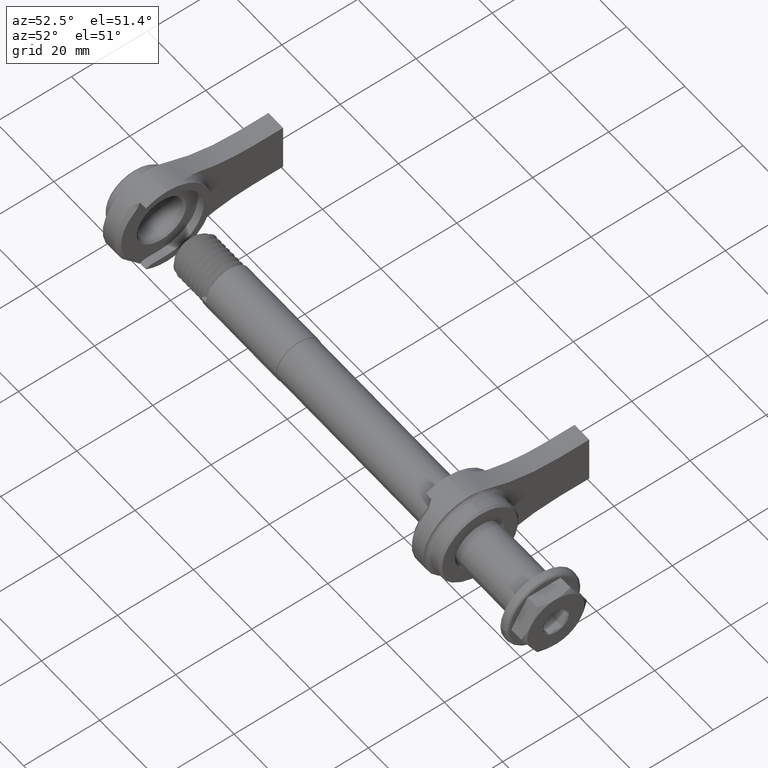
[diagram: clean part render]
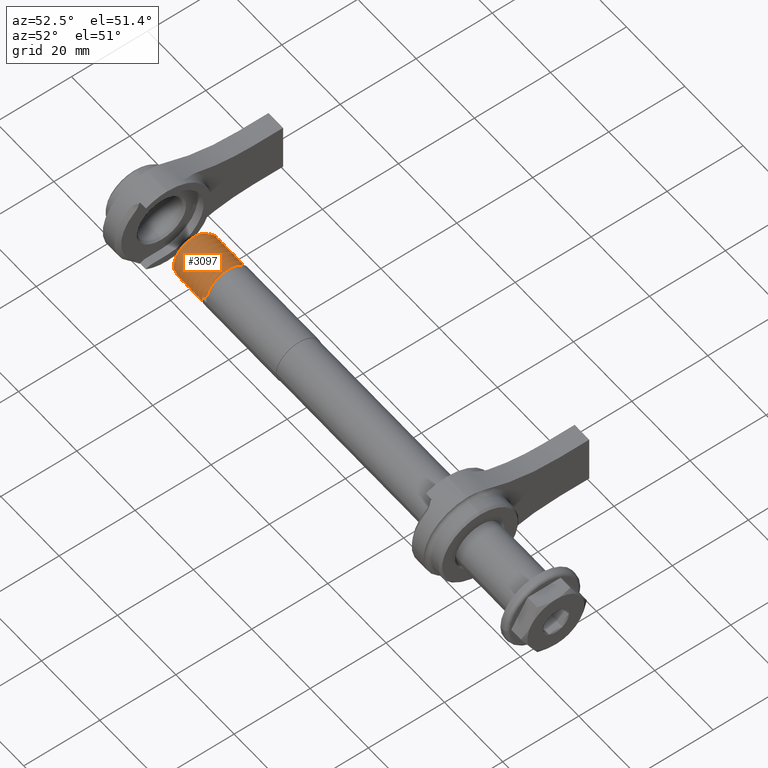
[diagram: same view with one face highlighted and labeled with its STEP entity id]
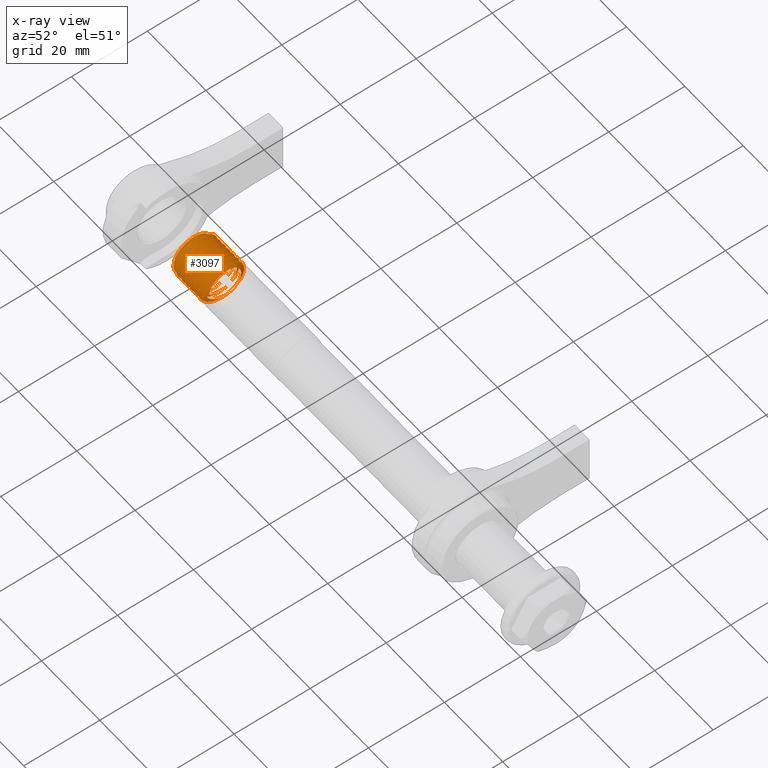
[diagram: x-ray of the same camera — body ghosted, the highlighted face saturated]
A machine part, auxiliary view. The second image highlights one B-rep face of the part: STEP entity #3097.
The next image is the same camera in x-ray: the body ghosted, the highlighted face saturated — about 0% of this face is hidden behind the body in this view.
In plain terms, the highlighted face is a freeform B-spline surface patch.
Its self-contained STEP definition (entity closure, byte-faithful):
#10 = CARTESIAN_POINT ( 'NONE',  ( 0.09375000000000040200, 2.402040232089651000, -5.799038105676653600 ) ) ;
#13 = CARTESIAN_POINT ( 'NONE',  ( 12.37499999999997300, -4.499999999999998200, 2.755455298081543300E-016 ) ) ;
#20 = CARTESIAN_POINT ( 'NONE',  ( 12.93749999999997200, 3.181980515339462000, -3.181980515339462900 ) ) ;
#22 = CARTESIAN_POINT ( 'NONE',  ( 8.249999999999982200, -5.510910596163086600E-016, -4.499999999999998200 ) ) ;
#28 = CARTESIAN_POINT ( 'NONE',  ( 2.156249999999995600, -1.863961030678930700, -4.499999999999996400 ) ) ;
#30 = CARTESIAN_POINT ( 'NONE',  ( 8.531249999999984000, -5.799038105676652700, 2.402040232089651500 ) ) ;
#34 = CARTESIAN_POINT ( 'NONE',  ( 12.56249999999997300, -3.181980515339462500, -3.181980515339462000 ) ) ;
#39 = CARTESIAN_POINT ( 'NONE',  ( 12.65624999999997500, 2.402040232089655000, 5.799038105676651800 ) ) ;
#42 = CARTESIAN_POINT ( 'NONE',  ( 10.12499999999997700, 4.499999999999998200, -1.543333508212129000E-014 ) ) ;
#44 = CARTESIAN_POINT ( 'NONE',  ( -0.3749999999999985600, -5.799038105676652700, 3.550886727125221900E-016 ) ) ;
#52 = CARTESIAN_POINT ( 'NONE',  ( 3.749999999999992500, 0.0000000000000000000, 5.799038105676652700 ) ) ;
#55 = CARTESIAN_POINT ( 'NONE',  ( 1.109761653768545700, -4.737125547306771300, 2.983704439254689900 ) ) ;
#59 = CARTESIAN_POINT ( 'NONE',  ( 11.15624999999997700, 2.402040232089655000, 5.799038105676651800 ) ) ;
#64 = CARTESIAN_POINT ( 'NONE',  ( 8.437499999999982200, 3.181980515339460700, -3.181980515339464200 ) ) ;
#67 = CARTESIAN_POINT ( 'NONE',  ( 2.437499999999995600, -4.100539168883151400, 4.100539168883152300 ) ) ;
#71 = CARTESIAN_POINT ( 'NONE',  ( 8.343749999999982200, -2.402040232089651000, 5.799038105676652700 ) ) ;
#72 = CARTESIAN_POINT ( 'NONE',  ( 0.5855737736721039500, 3.188912252089296300, -3.952591356859865600 ) ) ;
#77 = CARTESIAN_POINT ( 'NONE',  ( 12.46874999999997700, 5.799038105676651800, 2.402040232089652300 ) ) ;
#79 = CARTESIAN_POINT ( 'NONE',  ( 5.999999999999986700, 4.408728476930469300E-015, 4.499999999999998200 ) ) ;
#83 = CARTESIAN_POINT ( 'NONE',  ( 6.093749999999987600, 2.402040232089651000, -5.799038105676653600 ) ) ;
#88 = CARTESIAN_POINT ( 'NONE',  ( 7.031249999999985800, 4.499999999999996400, -1.863961030678929600 ) ) ;
#102 = CARTESIAN_POINT ( 'NONE',  ( -0.7499999999999977800, 0.0000000000000000000, 5.799038105676652700 ) ) ;
#106 = CARTESIAN_POINT ( 'NONE',  ( 9.749999999999980500, 0.0000000000000000000, 5.799038105676652700 ) ) ;
#116 = CARTESIAN_POINT ( 'NONE',  ( 1.593749999999996700, -1.863961030678926900, 4.499999999999997300 ) ) ;
#122 = CARTESIAN_POINT ( 'NONE',  ( 1.874999999999996900, 5.799038105676652700, -1.065266018137566400E-015 ) ) ;
#142 = CARTESIAN_POINT ( 'NONE',  ( 6.374999999999985800, 5.799038105676653600, -1.633766843707427200E-014 ) ) ;
#151 = CARTESIAN_POINT ( 'NONE',  ( 0.4821792120514235000, 1.699666295828570700E-011, -4.963879212051402600 ) ) ;
#153 = CARTESIAN_POINT ( 'NONE',  ( 5.062499999999988500, 4.100539168883160300, 4.100539168883145200 ) ) ;
#158 = CARTESIAN_POINT ( 'NONE',  ( 0.8810394086577184600, 2.592568198798156100, 4.706783197668889000 ) ) ;
#168 = CARTESIAN_POINT ( 'NONE',  ( 2.906249999999993800, 1.863961030678931400, 4.499999999999996400 ) ) ;
#173 = CARTESIAN_POINT ( 'NONE',  ( 9.562499999999980500, 4.100539168883147800, 4.100539168883155800 ) ) ;
#179 = VERTEX_POINT ( 'NONE', #753 ) ;
#183 = CARTESIAN_POINT ( 'NONE',  ( 10.78124999999997700, 5.799038105676646500, -2.402040232089664300 ) ) ;
#189 = CARTESIAN_POINT ( 'NONE',  ( 10.78124999999997700, -4.499999999999997300, 1.863961030678927200 ) ) ;
#193 = CARTESIAN_POINT ( 'NONE',  ( 3.843749999999991600, -2.402040232089651000, 5.799038105676653600 ) ) ;
#195 = CARTESIAN_POINT ( 'NONE',  ( 10.68749999999997700, 4.100539168883147800, -4.100539168883155000 ) ) ;
#201 = CARTESIAN_POINT ( 'NONE',  ( 9.187499999999980500, -3.181980515339462000, 3.181980515339462500 ) ) ;
#204 = CARTESIAN_POINT ( 'NONE',  ( 0.7157276477379856900, 5.206378828446710300, -0.1487631426012742100 ) ) ;
#212 = CARTESIAN_POINT ( 'NONE',  ( 6.562499999999985800, -3.181980515339468700, -3.181980515339456300 ) ) ;
#217 = CARTESIAN_POINT ( 'NONE',  ( 4.593749999999990200, 2.402040232089639900, -5.799038105676658900 ) ) ;
#225 = CARTESIAN_POINT ( 'NONE',  ( 6.937499999999985800, 3.181980515339461600, -3.181980515339462900 ) ) ;
#229 = CARTESIAN_POINT ( 'NONE',  ( 10.68749999999997700, -3.181980515339448300, 3.181980515339476200 ) ) ;
#231 = CARTESIAN_POINT ( 'NONE',  ( 2.156249999999995100, -1.863961030678927800, -4.499999999999997300 ) ) ;
#239 = CARTESIAN_POINT ( 'NONE',  ( 10.96874999999997500, 5.799038105676664200, 2.402040232089623000 ) ) ;
#244 = CARTESIAN_POINT ( 'NONE',  ( 0.4687499999999996100, 5.799038105676651800, 2.402040232089652300 ) ) ;
#278 = CARTESIAN_POINT ( 'NONE',  ( 0.1583012519699164300, -3.926449185049013700, 2.490555698681128600 ) ) ;
#300 = CARTESIAN_POINT ( 'NONE',  ( 0.2372754249587530900, -4.722569086500681300, 0.2377045017624368500 ) ) ;
#301 =( BOUNDED_CURVE ( )  B_SPLINE_CURVE ( 2, ( #2224, #4025, #3062, #3605, #581, #3810, #2957, #866, #2327, #924, #4345, #2695, #1599, #3734, #3999, #3003, #1257, #4403, #2943, #2750, #2416, #3367, #1912, #28, #2061, #4111, #3918, #933, #1608, #1882, #3220, #168, #355, #3761, #920, #1383, #2883, #2978, #708, #3829, #3131, #960, #1292, #3660, #1609, #1228, #2403, #1637, #3562, #727, #3239, #3277, #902, #2454, #2663, #3418, #4269, #1877, #1693, #2722, #1535, #2861, #885, #3550, #79, #569, #1982, #2599, #3292, #3256, #212, #2242, #3779, #781, #225, #3673, #3082, #838, #3479, #3432, #4180, #1452, #2784, #1568, #4301, #2213, #1573, #566, #530, #856, #64, #1049, #1264, #1549, #1796, #440, #1585, #1193, #1895, #3207, #2913, #375, #3649, #2565, #1927, #3934, #3689, #4254, #42, #1254, #2177, #4127, #2927, #2468, #229, #2544, #2602, #907, #1244, #2638, #2532, #2966, #1435, #405, #745, #2029, #2709, #1023, #3959 ),
 .UNSPECIFIED., .F., .F. ) 
 B_SPLINE_CURVE_WITH_KNOTS ( ( 3, 2, 2, 2, 2, 2, 2, 2, 2, 2, 2, 2, 2, 2, 2, 2, 2, 2, 2, 2, 2, 2, 2, 2, 2, 2, 2, 2, 2, 2, 2, 2, 2, 2, 2, 2, 2, 2, 2, 2, 2, 2, 2, 2, 2, 2, 2, 2, 2, 2, 2, 2, 2, 2, 2, 2, 2, 2, 2, 2, 2, 2, 2, 2, 3 ),
 ( 0.001434351736155090000, 0.01388888888888890200, 0.02777777777777780700, 0.04166666666666670600, 0.05555555555555560800, 0.06944444444444453100, 0.08333333333333342600, 0.09722222222222233500, 0.1111111111111112300, 0.1250000000000001400, 0.1388888888888890300, 0.1527777777777779800, 0.1666666666666668200, 0.1805555555555557500, 0.1944444444444446400, 0.2083333333333335900, 0.2222222222222224600, 0.2361111111111113500, 0.2500000000000003300, 0.2638888888888891700, 0.2777777777777781200, 0.2916666666666670200, 0.3055555555555559100, 0.3194444444444448100, 0.3333333333333337000, 0.3472222222222226000, 0.3611111111111114900, 0.3750000000000004400, 0.3888888888888893400, 0.4027777777777782300, 0.4166666666666671300, 0.4305555555555560800, 0.4444444444444449200, 0.4583333333333338700, 0.4722222222222227100, 0.4861111111111116600, 0.5000000000000005600, 0.5138888888888893900, 0.5277777777777783500, 0.5416666666666671800, 0.5555555555555562500, 0.5694444444444450900, 0.5833333333333340400, 0.5972222222222228800, 0.6111111111111119400, 0.6250000000000006700, 0.6388888888888895100, 0.6527777777777784600, 0.6666666666666674100, 0.6805555555555563600, 0.6944444444444452000, 0.7083333333333341500, 0.7222222222222231000, 0.7361111111111120500, 0.7500000000000007800, 0.7638888888888896200, 0.7777777777777786800, 0.7916666666666675200, 0.8055555555555564700, 0.8194444444444453100, 0.8333333333333343700, 0.8472222222222232100, 0.8611111111111121600, 0.8750000000000008900, 0.8888888888888898400 ),
 .UNSPECIFIED. ) 
 CURVE ( )  GEOMETRIC_REPRESENTATION_ITEM ( )  RATIONAL_B_SPLINE_CURVE ( ( 0.9859012798141932900, 0.9317407462896415400, 1.000000000000000000, 0.9238795325112867400, 1.000000000000000000, 0.9238795325112867400, 1.000000000000000000, 0.9238795325112867400, 1.000000000000000000, 0.9238795325112867400, 1.000000000000000000, 0.9238795325112867400, 1.000000000000000000, 0.9238795325112867400, 1.000000000000000000, 0.9238795325112867400, 1.000000000000000000, 0.9238795325112867400, 1.000000000000000000, 0.9238795325112867400, 1.000000000000000000, 0.9238795325112867400, 1.000000000000000000, 0.9238795325112867400, 1.000000000000000000, 0.9238795325112867400, 1.000000000000000000, 0.9238795325112867400, 1.000000000000000000, 0.9238795325112867400, 1.000000000000000000, 0.9238795325112867400, 1.000000000000000000, 0.9238795325112867400, 1.000000000000000000, 0.9238795325112867400, 1.000000000000000000, 0.9238795325112867400, 1.000000000000000000, 0.9238795325112867400, 1.000000000000000000, 0.9238795325112867400, 1.000000000000000000, 0.9238795325112867400, 1.000000000000000000, 0.9238795325112867400, 1.000000000000000000, 0.9238795325112867400, 1.000000000000000000, 0.9238795325112867400, 1.000000000000000000, 0.9238795325112867400, 1.000000000000000000, 0.9238795325112867400, 1.000000000000000000, 0.9238795325112867400, 1.000000000000000000, 0.9238795325112867400, 1.000000000000000000, 0.9238795325112867400, 1.000000000000000000, 0.9238795325112867400, 1.000000000000000000, 0.9238795325112867400, 1.000000000000000000, 0.9238795325112867400, 1.000000000000000000, 0.9238795325112867400, 1.000000000000000000, 0.9238795325112867400, 1.000000000000000000, 0.9238795325112867400, 1.000000000000000000, 0.9238795325112867400, 1.000000000000000000, 0.9238795325112867400, 1.000000000000000000, 0.9238795325112867400, 1.000000000000000000, 0.9238795325112867400, 1.000000000000000000, 0.9238795325112867400, 1.000000000000000000, 0.9238795325112867400, 1.000000000000000000, 0.9238795325112867400, 1.000000000000000000, 0.9238795325112867400, 1.000000000000000000, 0.9238795325112867400, 1.000000000000000000, 0.9238795325112867400, 1.000000000000000000, 0.9238795325112867400, 1.000000000000000000, 0.9238795325112867400, 1.000000000000000000, 0.9238795325112867400, 1.000000000000000000, 0.9238795325112867400, 1.000000000000000000, 0.9238795325112867400, 1.000000000000000000, 0.9238795325112867400, 1.000000000000000000, 0.9238795325112867400, 1.000000000000000000, 0.9238795325112867400, 1.000000000000000000, 0.9238795325112867400, 1.000000000000000000, 0.9238795325112867400, 1.000000000000000000, 0.9238795325112867400, 1.000000000000000000, 0.9238795325112867400, 1.000000000000000000, 0.9238795325112867400, 1.000000000000000000, 0.9238795325112867400, 1.000000000000000000, 0.9238795325112867400, 1.000000000000000000, 0.9238795325112867400, 1.000000000000000000, 0.9238795325112867400, 1.000000000000000000, 0.9238795325112813000, 1.000000000000005600 ) ) 
 REPRESENTATION_ITEM ( '' )  );
#305 = CARTESIAN_POINT ( 'NONE',  ( 13.03124999999997000, 4.499999999999996400, -1.863961030678929600 ) ) ;
#318 = CARTESIAN_POINT ( 'NONE',  ( 4.687499999999990200, -3.181980515339462000, 3.181980515339462500 ) ) ;
#330 = CARTESIAN_POINT ( 'NONE',  ( 4.593749999999990200, -1.863961030678926900, 4.499999999999997300 ) ) ;
#336 = EDGE_CURVE ( 'NONE', #3578, #2665, #2189, .T. ) ;
#341 = CARTESIAN_POINT ( 'NONE',  ( 10.12499999999997700, -5.799038105676652700, -7.137668377232961900E-016 ) ) ;
#344 = CARTESIAN_POINT ( 'NONE',  ( 0.3749999999999997800, 5.799038105676652700, -1.065266018137566400E-015 ) ) ;
#348 = CARTESIAN_POINT ( 'NONE',  ( 7.312499999999984000, 3.181980515339462900, 3.181980515339461600 ) ) ;
#355 = CARTESIAN_POINT ( 'NONE',  ( 2.999999999999993300, 2.204364238465234600E-015, 4.499999999999998200 ) ) ;
#357 = CARTESIAN_POINT ( 'NONE',  ( 10.12499999999997700, 4.499999999999998200, -8.266365894244629400E-016 ) ) ;
#360 = CARTESIAN_POINT ( 'NONE',  ( 8.437499999999982200, 3.181980515339462000, -3.181980515339462900 ) ) ;
#375 = CARTESIAN_POINT ( 'NONE',  ( 9.468749999999978700, -4.500000000000001800, -1.863961030678922000 ) ) ;
#377 = CARTESIAN_POINT ( 'NONE',  ( 5.718749999999987600, 4.499999999999996400, 1.863961030678928300 ) ) ;
#383 = CARTESIAN_POINT ( 'NONE',  ( 12.74999999999997300, -5.510910596163086600E-016, -4.499999999999998200 ) ) ;
#387 = CARTESIAN_POINT ( 'NONE',  ( 1.317338105674105400, -4.012341604402302600, -4.186879243621939800 ) ) ;
#394 = CARTESIAN_POINT ( 'NONE',  ( 1.218749999999997300, 4.499999999999996400, 1.863961030678928300 ) ) ;
#398 = CARTESIAN_POINT ( 'NONE',  ( 8.156249999999982200, 2.402040232089651500, 5.799038105676655300 ) ) ;
#402 = CARTESIAN_POINT ( 'NONE',  ( 1.289088196161686500, -4.739794427181865700, -3.339268071359725400 ) ) ;
#403 = CARTESIAN_POINT ( 'NONE',  ( 11.34374999999997700, -2.402040232089651000, 5.799038105676652700 ) ) ;
#405 = CARTESIAN_POINT ( 'NONE',  ( 11.53124999999997500, 4.499999999999993800, -1.863961030678937600 ) ) ;
#409 = CARTESIAN_POINT ( 'NONE',  ( 6.937499999999985800, -4.100539168883151400, 4.100539168883152300 ) ) ;
#414 = CARTESIAN_POINT ( 'NONE',  ( 9.093749999999982200, 2.402040232089651000, -5.799038105676653600 ) ) ;
#420 = CARTESIAN_POINT ( 'NONE',  ( 1.125185303849874000, -5.024962472425431600, 2.503062557639011300 ) ) ;
#421 = CARTESIAN_POINT ( 'NONE',  ( 12.74999999999997300, 0.0000000000000000000, 5.799038105676652700 ) ) ;
#428 = CARTESIAN_POINT ( 'NONE',  ( 5.718749999999987600, -5.799038105676652700, -2.402040232089651000 ) ) ;
#434 = CARTESIAN_POINT ( 'NONE',  ( 7.968749999999983100, -4.499999999999997300, -1.863961030678926700 ) ) ;
#440 = CARTESIAN_POINT ( 'NONE',  ( 8.906249999999982200, 1.863961030678927800, 4.499999999999999100 ) ) ;
#444 = CARTESIAN_POINT ( 'NONE',  ( 13.49999999999997000, 0.0000000000000000000, 4.499999999999998200 ) ) ;
#449 = CARTESIAN_POINT ( 'NONE',  ( 8.812499999999982200, -4.100539168883162900, -4.100539168883143400 ) ) ;
#464 = CARTESIAN_POINT ( 'NONE',  ( 1.687499999999997100, 4.100539168883151400, -4.100539168883152300 ) ) ;
#479 = CARTESIAN_POINT ( 'NONE',  ( 6.187499999999986700, 4.100539168883151400, -4.100539168883153200 ) ) ;
#495 = CARTESIAN_POINT ( 'NONE',  ( 4.874999999999989300, 5.799038105676653600, -1.491731374622418400E-014 ) ) ;
#497 = CARTESIAN_POINT ( 'NONE',  ( 0.7946050387061387400, 4.663242129782363000, 2.491656826803015300 ) ) ;
#506 = CARTESIAN_POINT ( 'NONE',  ( 9.937499999999976900, -4.100539168883134500, 4.100539168883169200 ) ) ;
#522 = CARTESIAN_POINT ( 'NONE',  ( 0.0000000000000000000, 0.0000000000000000000, 4.499999999999998200 ) ) ;
#528 = CARTESIAN_POINT ( 'NONE',  ( 1.593749999999996400, 2.402040232089649200, -5.799038105676655300 ) ) ;
#530 = CARTESIAN_POINT ( 'NONE',  ( 8.249999999999982200, -2.204921321038164100E-014, -4.499999999999998200 ) ) ;
#539 = CARTESIAN_POINT ( 'NONE',  ( 11.15624999999997500, -1.863961030678927800, -4.499999999999997300 ) ) ;
#541 = CARTESIAN_POINT ( 'NONE',  ( 0.5547262939203704300, 2.314260186365184200, -4.476493672766602000 ) ) ;
#556 = CARTESIAN_POINT ( 'NONE',  ( 6.843749999999985800, -2.402040232089636800, 5.799038105676658900 ) ) ;
#566 = CARTESIAN_POINT ( 'NONE',  ( 8.156249999999982200, -1.863961030678942900, -4.499999999999992000 ) ) ;
#569 = CARTESIAN_POINT ( 'NONE',  ( 6.093749999999987600, -1.863961030678916300, 4.500000000000002700 ) ) ;
#571 = CARTESIAN_POINT ( 'NONE',  ( 0.5624999999999995600, 4.100539168883152300, 4.100539168883150500 ) ) ;
#581 = CARTESIAN_POINT ( 'NONE',  ( 0.3749999999999991700, -4.499999999999998200, 2.755455298081543300E-016 ) ) ;
#583 = CARTESIAN_POINT ( 'NONE',  ( 7.124999999999984900, -5.799038105676652700, 3.550886727125221900E-016 ) ) ;
#614 = CARTESIAN_POINT ( 'NONE',  ( 0.1288575231574521900, -3.343156108035739900, 3.189517221015175900 ) ) ;
#637 = CARTESIAN_POINT ( 'NONE',  ( 0.2748372202918918900, -4.666419793973571700, -0.9696912882408195200 ) ) ;
#645 = CARTESIAN_POINT ( 'NONE',  ( 6.562499999999985800, 4.100539168883152300, 4.100539168883150500 ) ) ;
#657 = CARTESIAN_POINT ( 'NONE',  ( 0.8437499999999990000, -2.402040232089651000, 5.799038105676652700 ) ) ;
#664 = CARTESIAN_POINT ( 'NONE',  ( 0.9957629449498424100, -1.383529408589228900, 5.307128377934918500 ) ) ;
#667 = CARTESIAN_POINT ( 'NONE',  ( 3.843749999999991600, 1.863961030678926000, -4.500000000000000000 ) ) ;
#672 = B_SPLINE_CURVE_WITH_KNOTS ( 'NONE', 3,
 ( #1314, #3348, #2635, #2309, #3327, #2645, #958, #2334, #2671, #2977, #3335, #2993, #4023, #1657, #1306, #637, #3001, #4367, #300, #4032, #1634, #1979, #3683, #278, #4399, #614, #966, #3480, #2802, #1175, #2093, #1040, #3428, #1412 ),
 .UNSPECIFIED., .F., .F.,
 ( 4, 2, 2, 2, 2, 2, 2, 2, 2, 2, 2, 2, 2, 2, 2, 2, 4 ),
 ( 0.02969299655174832000, 0.03059740670302130500, 0.03150181685429429000, 0.03240622700556727200, 0.03331063715684025300, 0.03421504730811324200, 0.03511945745938622300, 0.03602386761065921200, 0.03692827776193219300, 0.03783268791320518200, 0.03873709806447816300, 0.03964150821575114500, 0.04054591836702413400, 0.04145032851829712200, 0.04235473866957010400, 0.04325914882084308500, 0.04416355897211607400 ),
 .UNSPECIFIED. ) ;
#674 = CARTESIAN_POINT ( 'NONE',  ( 0.9880080810677847000, -1.112090193180758500, 5.362656492554496200 ) ) ;
#682 = CARTESIAN_POINT ( 'NONE',  ( 3.749999999999992000, -5.510910596163086600E-016, -4.499999999999998200 ) ) ;
#688 = CARTESIAN_POINT ( 'NONE',  ( 7.499999999999984000, 0.0000000000000000000, 4.499999999999998200 ) ) ;
#698 = CARTESIAN_POINT ( 'NONE',  ( 10.40624999999997900, 1.863961030678929800, 4.499999999999996400 ) ) ;
#701 = CARTESIAN_POINT ( 'NONE',  ( 8.624999999999982200, 4.499999999999998200, -8.266365894244629400E-016 ) ) ;
#702 = CARTESIAN_POINT ( 'NONE',  ( 0.5336155956640317200, 1.681857335508043100, -4.737186688879966700 ) ) ;
#708 = CARTESIAN_POINT ( 'NONE',  ( 3.562499999999992500, -3.181980515339466900, -3.181980515339457600 ) ) ;
#711 = CARTESIAN_POINT ( 'NONE',  ( 6.562499999999985800, -3.181980515339462500, -3.181980515339462000 ) ) ;
#717 = CARTESIAN_POINT ( 'NONE',  ( 8.624999999999982200, -5.799038105676653600, -2.134121528573385100E-015 ) ) ;
#719 = CARTESIAN_POINT ( 'NONE',  ( 0.6761791544591427800, 4.950582975453731800, -1.487175258332814400 ) ) ;
#727 = CARTESIAN_POINT ( 'NONE',  ( 4.593749999999990200, -1.863961030678917600, 4.500000000000002700 ) ) ;
#728 = CARTESIAN_POINT ( 'NONE',  ( 7.031249999999986700, -5.799038105676652700, 2.402040232089651500 ) ) ;
#734 = CARTESIAN_POINT ( 'NONE',  ( 7.874999999999983100, 5.799038105676653600, -1.775802312792436100E-014 ) ) ;
#738 = CARTESIAN_POINT ( 'NONE',  ( 11.53124999999997700, -5.799038105676652700, 2.402040232089651500 ) ) ;
#745 = CARTESIAN_POINT ( 'NONE',  ( 11.62499999999997500, 4.499999999999998200, -1.653551720135390700E-014 ) ) ;
#751 = CARTESIAN_POINT ( 'NONE',  ( 5.343749999999988500, -2.402040232089651000, 5.799038105676652700 ) ) ;
#753 = CARTESIAN_POINT ( 'NONE',  ( 11.24999999999998900, -2.983821698474661500E-013, 5.799038105676652700 ) ) ;
#757 = CARTESIAN_POINT ( 'NONE',  ( 9.281249999999980500, 5.799038105676651800, -2.402040232089654600 ) ) ;
#758 = CARTESIAN_POINT ( 'NONE',  ( 0.6862786743348154900, 5.047061670569013900, -1.162233687543352800 ) ) ;
#766 = CARTESIAN_POINT ( 'NONE',  ( 6.468749999999985800, 5.799038105676651800, 2.402040232089652300 ) ) ;
#773 = CARTESIAN_POINT ( 'NONE',  ( 8.718749999999982200, -5.799038105676657100, -2.402040232089645700 ) ) ;
#781 = CARTESIAN_POINT ( 'NONE',  ( 6.843749999999985800, 1.863961030678915600, -4.500000000000003600 ) ) ;
#788 = CARTESIAN_POINT ( 'NONE',  ( 0.9374999999999980000, 3.181980515339462000, -3.181980515339462900 ) ) ;
#793 = CARTESIAN_POINT ( 'NONE',  ( 6.562499999999985800, 4.100539168883160300, 4.100539168883143400 ) ) ;
#807 = CARTESIAN_POINT ( 'NONE',  ( 1.499999999999997300, -7.101773454250443900E-016, -5.799038105676652700 ) ) ;
#825 = CARTESIAN_POINT ( 'NONE',  ( 5.906249999999986700, -2.402040232089650100, -5.799038105676655300 ) ) ;
#838 = CARTESIAN_POINT ( 'NONE',  ( 7.218749999999985800, 4.500000000000001800, 1.863961030678923800 ) ) ;
#843 = CARTESIAN_POINT ( 'NONE',  ( 4.687499999999989300, 4.100539168883152300, -4.100539168883152300 ) ) ;
#844 = CARTESIAN_POINT ( 'NONE',  ( 0.7746154694853399900, 4.917930693294637800, 1.863285276609530200 ) ) ;
#850 = CARTESIAN_POINT ( 'NONE',  ( 0.9203243585158302800, 1.340780650430125800, 5.243993809007662300 ) ) ;
#856 = CARTESIAN_POINT ( 'NONE',  ( 8.343749999999982200, 1.863961030678930900, -4.499999999999996400 ) ) ;
#866 = CARTESIAN_POINT ( 'NONE',  ( 0.6562499999999987800, -1.863961030678927800, -4.499999999999999100 ) ) ;
#876 = CARTESIAN_POINT ( 'NONE',  ( 7.312499999999984000, -4.100539168883161200, -4.100539168883143400 ) ) ;
#879 = CARTESIAN_POINT ( 'NONE',  ( 0.6401058055659302200, 4.436371566990290600, -2.565199609697296900 ) ) ;
#883 = CARTESIAN_POINT ( 'NONE',  ( 3.937499999999991600, -4.100539168883153200, 4.100539168883151400 ) ) ;
#885 = CARTESIAN_POINT ( 'NONE',  ( 5.812499999999987600, 3.181980515339468200, 3.181980515339456700 ) ) ;
#902 = CARTESIAN_POINT ( 'NONE',  ( 4.874999999999989300, -4.499999999999998200, -4.411513889795116100E-015 ) ) ;
#907 = CARTESIAN_POINT ( 'NONE',  ( 10.96874999999997500, -4.500000000000001800, -1.863961030678920900 ) ) ;
#911 = CARTESIAN_POINT ( 'NONE',  ( 9.749999999999978700, 9.232305490525577400E-015, 5.799038105676653600 ) ) ;
#920 = CARTESIAN_POINT ( 'NONE',  ( 3.187499999999993300, -3.181980515339463400, 3.181980515339461100 ) ) ;
#924 = CARTESIAN_POINT ( 'NONE',  ( 0.8437499999999981100, 1.863961030678925800, -4.500000000000000000 ) ) ;
#926 = CARTESIAN_POINT ( 'NONE',  ( 2.062499999999995600, -3.181980515339462500, -3.181980515339462000 ) ) ;
#933 = CARTESIAN_POINT ( 'NONE',  ( 2.531249999999994700, 4.499999999999996400, -1.863961030678930900 ) ) ;
#939 = CARTESIAN_POINT ( 'NONE',  ( 2.812499999999993800, 3.181980515339462900, 3.181980515339461600 ) ) ;
#958 = CARTESIAN_POINT ( 'NONE',  ( 0.4077573999228288900, -2.302440436299809900, -4.324154450900206100 ) ) ;
#960 = CARTESIAN_POINT ( 'NONE',  ( 3.843749999999991600, 1.863961030678918100, -4.500000000000002700 ) ) ;
#966 = CARTESIAN_POINT ( 'NONE',  ( 0.1196721549521021800, -3.121893115698276300, 3.393630807826700100 ) ) ;
#970 = EDGE_LOOP ( 'NONE', ( #4016, #1343, #1592, #2016, #1291, #3956, #2512 ) ) ;
#980 = CARTESIAN_POINT ( 'NONE',  ( 11.15624999999998200, 2.402040232089521300, 5.799038105676785000 ) ) ;
#993 = CARTESIAN_POINT ( 'NONE',  ( 4.593749999999990200, 2.402040232089651000, -5.799038105676653600 ) ) ;
#1003 = CARTESIAN_POINT ( 'NONE',  ( 2.906249999999993800, 1.863961030678929800, 4.499999999999996400 ) ) ;
#1008 = CARTESIAN_POINT ( 'NONE',  ( 0.9576601592130621300, -1.746275036470121900E-011, 5.439360159213043400 ) ) ;
#1015 = CARTESIAN_POINT ( 'NONE',  ( 8.062499999999984000, 4.100539168883152300, 4.100539168883150500 ) ) ;
#1020 = CARTESIAN_POINT ( 'NONE',  ( 0.9650110561007732000, -0.2786565971290709300, 5.446711056099857700 ) ) ;
#1023 = CARTESIAN_POINT ( 'NONE',  ( 11.90624999999998200, 1.863961030678826800, 4.500000000000100400 ) ) ;
#1025 = CARTESIAN_POINT ( 'NONE',  ( 4.124999999999991100, 4.499999999999998200, -8.266365894244629400E-016 ) ) ;
#1028 = CARTESIAN_POINT ( 'NONE',  ( 7.687499999999983100, -3.181980515339462000, 3.181980515339462500 ) ) ;
#1029 = EDGE_CURVE ( 'NONE', #1989, #2194, #301, .T. ) ;
#1034 = CARTESIAN_POINT ( 'NONE',  ( 10.21874999999997700, 4.499999999999996400, 1.863961030678928300 ) ) ;
#1038 = CARTESIAN_POINT ( 'NONE',  ( 12.18749999999997500, -3.181980515339462000, 3.181980515339462500 ) ) ;
#1040 = CARTESIAN_POINT ( 'NONE',  ( 0.03862909134143904100, -0.9661747281733333900, 4.426165201048483800 ) ) ;
#1049 = CARTESIAN_POINT ( 'NONE',  ( 8.531249999999985800, 4.499999999999995600, -1.863961030678934900 ) ) ;
#1054 = CARTESIAN_POINT ( 'NONE',  ( 6.281249999999985800, -4.499999999999997300, 1.863961030678927200 ) ) ;
#1062 = CARTESIAN_POINT ( 'NONE',  ( 4.406249999999991100, -2.402040232089651900, -5.799038105676652700 ) ) ;
#1063 = EDGE_CURVE ( 'NONE', #2377, #179, #3786, .T. ) ;
#1073 = CARTESIAN_POINT ( 'NONE',  ( 9.749999999999978700, 9.232305490525577400E-015, 5.799038105676653600 ) ) ;
#1075 = CARTESIAN_POINT ( 'NONE',  ( 6.749999999999985800, 0.0000000000000000000, 5.799038105676652700 ) ) ;
#1079 = CARTESIAN_POINT ( 'NONE',  ( 7.687499999999983100, 4.100539168883150500, -4.100539168883154100 ) ) ;
#1085 = CARTESIAN_POINT ( 'NONE',  ( 11.81249999999997500, -4.100539168883152300, -4.100539168883151400 ) ) ;
#1091 = CARTESIAN_POINT ( 'NONE',  ( 5.531249999999988500, -5.799038105676652700, 2.402040232089651500 ) ) ;
#1097 = CARTESIAN_POINT ( 'NONE',  ( 9.468749999999980500, 5.799038105676651800, 2.402040232089652300 ) ) ;
#1104 = CARTESIAN_POINT ( 'NONE',  ( 1.221596616985713300, -5.620703621900531700, -1.006616350258703100 ) ) ;
#1106 = CARTESIAN_POINT ( 'NONE',  ( 12.00000000000000000, -4.707988896842063900E-013, 4.499999999999998200 ) ) ;
#1111 = CARTESIAN_POINT ( 'NONE',  ( 2.062499999999996000, 4.100539168883152300, 4.100539168883150500 ) ) ;
#1116 = CARTESIAN_POINT ( 'NONE',  ( 8.906249999999984000, -2.402040232089651900, -5.799038105676652700 ) ) ;
#1119 = CARTESIAN_POINT ( 'NONE',  ( 1.042799407855337300, -2.932064143176358300, 4.690398868814836100 ) ) ;
#1126 = CARTESIAN_POINT ( 'NONE',  ( 0.6562499999999987800, -1.863961030678927800, -4.499999999999997300 ) ) ;
#1131 = CARTESIAN_POINT ( 'NONE',  ( 3.187499999999993800, 4.100539168883151400, -4.100539168883152300 ) ) ;
#1143 = CARTESIAN_POINT ( 'NONE',  ( 1.312499999999998200, -4.100539168883152300, -4.100539168883151400 ) ) ;
#1161 = CARTESIAN_POINT ( 'NONE',  ( 5.718749999999987600, -5.799038105676655300, -2.402040232089648300 ) ) ;
#1175 = CARTESIAN_POINT ( 'NONE',  ( 0.06945288033553374800, -1.834334852297736700, 4.176056898840322200 ) ) ;
#1181 = CARTESIAN_POINT ( 'NONE',  ( 4.406249999999990200, -2.402040232089658600, -5.799038105676651800 ) ) ;
#1183 = CARTESIAN_POINT ( 'NONE',  ( 0.8241626597323860000, 4.118838137457739600, 3.362290443821432300 ) ) ;
#1193 = CARTESIAN_POINT ( 'NONE',  ( 9.093749999999980500, -1.863961030678914900, 4.500000000000003600 ) ) ;
#1215 = CARTESIAN_POINT ( 'NONE',  ( 7.124999999999984900, -5.799038105676653600, -3.554476219423474400E-015 ) ) ;
#1216 = CARTESIAN_POINT ( 'NONE',  ( 0.6248752566811161000, 4.154405292418217300, -2.988815074695125900 ) ) ;
#1226 = CARTESIAN_POINT ( 'NONE',  ( 4.312499999999991100, -4.100539168883159400, -4.100539168883145200 ) ) ;
#1228 = CARTESIAN_POINT ( 'NONE',  ( 4.218749999999991100, 4.500000000000000000, 1.863961030678925800 ) ) ;
#1242 = CARTESIAN_POINT ( 'NONE',  ( 1.317338105674105400, -4.012341604402302600, -4.186879243621939800 ) ) ;
#1244 = CARTESIAN_POINT ( 'NONE',  ( 11.06249999999997700, -3.181980515339471300, -3.181980515339454500 ) ) ;
#1248 = CARTESIAN_POINT ( 'NONE',  ( 7.218749999999985800, -5.799038105676652700, -2.402040232089651000 ) ) ;
#1254 = CARTESIAN_POINT ( 'NONE',  ( 10.21874999999997900, 4.500000000000006200, 1.863961030678905400 ) ) ;
#1257 = CARTESIAN_POINT ( 'NONE',  ( 1.499999999999996700, 1.102182119232617300E-015, 4.499999999999998200 ) ) ;
#1258 = CARTESIAN_POINT ( 'NONE',  ( 0.2812499999999993900, -4.499999999999997300, 1.863961030678927200 ) ) ;
#1264 = CARTESIAN_POINT ( 'NONE',  ( 8.624999999999982200, 4.499999999999998200, -1.433115296288867400E-014 ) ) ;
#1265 = VECTOR ( 'NONE', #2414, 1000.000000000000200 ) ;
#1272 = CARTESIAN_POINT ( 'NONE',  ( 4.968749999999990200, -4.499999999999997300, -1.863961030678926700 ) ) ;
#1291 = ORIENTED_EDGE ( 'NONE', *, *, #2704, .F. ) ;
#1292 = CARTESIAN_POINT ( 'NONE',  ( 3.937499999999991600, 3.181980515339462900, -3.181980515339461600 ) ) ;
#1306 = CARTESIAN_POINT ( 'NONE',  ( 0.2943585155645647200, -4.525212695707298700, -1.557020732926385700 ) ) ;
#1314 = CARTESIAN_POINT ( 'NONE',  ( 0.4821792120514235000, 1.699666295828570700E-011, -4.963879212051402600 ) ) ;
#1331 = CARTESIAN_POINT ( 'NONE',  ( 9.843749999999976900, 1.863961030678926000, -4.500000000000000000 ) ) ;
#1343 = ORIENTED_EDGE ( 'NONE', *, *, #1063, .T. ) ;
#1345 = CARTESIAN_POINT ( 'NONE',  ( 0.7499999999999990000, 0.0000000000000000000, 5.799038105676652700 ) ) ;
#1350 = CARTESIAN_POINT ( 'NONE',  ( 1.035085908855643900, -2.689727182599376000, 4.824712676750184700 ) ) ;
#1356 = CARTESIAN_POINT ( 'NONE',  ( 0.2812500000000001100, 5.799038105676651800, -2.402040232089654600 ) ) ;
#1362 = CARTESIAN_POINT ( 'NONE',  ( 1.132933574780628800, -5.150473594664419800, 2.252441704266916500 ) ) ;
#1369 = CARTESIAN_POINT ( 'NONE',  ( 7.593749999999983100, 2.402040232089651000, -5.799038105676653600 ) ) ;
#1372 = CARTESIAN_POINT ( 'NONE',  ( 7.874999999999983100, -4.499999999999998200, 2.755455298081543300E-016 ) ) ;
#1383 = CARTESIAN_POINT ( 'NONE',  ( 3.281249999999992900, -4.499999999999996400, 1.863961030678931600 ) ) ;
#1385 = CARTESIAN_POINT ( 'NONE',  ( 7.968749999999984900, 5.799038105676651800, 2.402040232089652300 ) ) ;
#1390 = CARTESIAN_POINT ( 'NONE',  ( 11.90624999999997300, 1.863961030678929800, 4.499999999999996400 ) ) ;
#1402 = CARTESIAN_POINT ( 'NONE',  ( 6.093749999999987600, -1.863961030678926900, 4.499999999999997300 ) ) ;
#1406 = CARTESIAN_POINT ( 'NONE',  ( 4.781249999999990200, 5.799038105676651800, -2.402040232089654600 ) ) ;
#1407 = CARTESIAN_POINT ( 'NONE',  ( 0.7645584136698743100, 5.018746877742704400, 1.537670033355091900 ) ) ;
#1412 = CARTESIAN_POINT ( 'NONE',  ( 0.01830000000001834300, -0.3579392531337184400, 4.485741799420253500 ) ) ;
#1413 = CARTESIAN_POINT ( 'NONE',  ( 10.68749999999997900, 4.100539168883151400, -4.100539168883152300 ) ) ;
#1420 = CARTESIAN_POINT ( 'NONE',  ( 5.437499999999988500, -4.100539168883151400, 4.100539168883152300 ) ) ;
#1426 = CARTESIAN_POINT ( 'NONE',  ( 7.499999999999983100, -7.101773454250444500E-015, -5.799038105676653600 ) ) ;
#1428 = CARTESIAN_POINT ( 'NONE',  ( 1.244066743503526000, -5.454748012221111600, -1.828141801478835800 ) ) ;
#1429 = CARTESIAN_POINT ( 'NONE',  ( 11.99999999999997500, -7.101773454250443900E-016, -5.799038105676652700 ) ) ;
#1435 = CARTESIAN_POINT ( 'NONE',  ( 11.43749999999997500, 3.181980515339458900, -3.181980515339465600 ) ) ;
#1437 = CARTESIAN_POINT ( 'NONE',  ( 6.187499999999987600, 4.100539168883151400, -4.100539168883152300 ) ) ;
#1443 = CARTESIAN_POINT ( 'NONE',  ( 11.34374999999997700, 1.863961030678926000, -4.500000000000000000 ) ) ;
#1452 = CARTESIAN_POINT ( 'NONE',  ( 7.593749999999983100, -1.863961030678915200, 4.500000000000003600 ) ) ;
#1457 = CARTESIAN_POINT ( 'NONE',  ( 13.21874999999997200, 4.499999999999996400, 1.863961030678928300 ) ) ;
#1461 = CARTESIAN_POINT ( 'NONE',  ( 11.24999999999997500, -5.510910596163086600E-016, -4.499999999999998200 ) ) ;
#1471 = CARTESIAN_POINT ( 'NONE',  ( 3.281249999999992900, -4.499999999999997300, 1.863961030678927200 ) ) ;
#1476 = CARTESIAN_POINT ( 'NONE',  ( 2.999999999999994200, -7.101773454250443900E-016, -5.799038105676652700 ) ) ;
#1492 = CARTESIAN_POINT ( 'NONE',  ( 1.406249999999997600, -2.402040232089651900, -5.799038105676652700 ) ) ;
#1509 = CARTESIAN_POINT ( 'NONE',  ( 5.437499999999988500, -4.100539168883151400, 4.100539168883153200 ) ) ;
#1525 = CARTESIAN_POINT ( 'NONE',  ( 9.093749999999980500, 2.402040232089655900, -5.799038105676651800 ) ) ;
#1535 = CARTESIAN_POINT ( 'NONE',  ( 5.624999999999987600, 4.499999999999998200, -1.212678872442343700E-014 ) ) ;
#1547 = CARTESIAN_POINT ( 'NONE',  ( 1.409059592567415400, -2.330053518673982800, -5.799038105676653600 ) ) ;
#1549 = CARTESIAN_POINT ( 'NONE',  ( 8.718749999999982200, 4.500000000000006200, 1.863961030678906300 ) ) ;
#1555 = CARTESIAN_POINT ( 'NONE',  ( 6.937499999999984900, -4.100539168883151400, 4.100539168883154100 ) ) ;
#1566 = CARTESIAN_POINT ( 'NONE',  ( 4.031249999999991100, -5.799038105676651800, 2.402040232089658100 ) ) ;
#1568 = CARTESIAN_POINT ( 'NONE',  ( 7.781249999999984000, -4.500000000000002700, 1.863961030678918500 ) ) ;
#1573 = CARTESIAN_POINT ( 'NONE',  ( 8.062499999999982200, -3.181980515339469600, -3.181980515339455800 ) ) ;
#1585 = CARTESIAN_POINT ( 'NONE',  ( 8.999999999999980500, 6.613092715395703500E-015, 4.499999999999998200 ) ) ;
#1590 = CARTESIAN_POINT ( 'NONE',  ( 1.499999999999996700, 0.0000000000000000000, 4.499999999999998200 ) ) ;
#1592 = ORIENTED_EDGE ( 'NONE', *, *, #3111, .F. ) ;
#1597 = CARTESIAN_POINT ( 'NONE',  ( 3.374999999999992500, 5.799038105676653600, -3.195798054412700100E-015 ) ) ;
#1599 = CARTESIAN_POINT ( 'NONE',  ( 1.124999999999997600, 4.499999999999998200, -8.266365894244629400E-016 ) ) ;
#1601 = CARTESIAN_POINT ( 'NONE',  ( -0.1874999999999989700, -4.100539168883152300, -4.100539168883151400 ) ) ;
#1608 = CARTESIAN_POINT ( 'NONE',  ( 2.624999999999994700, 4.499999999999998200, -1.928818708657080600E-015 ) ) ;
#1609 = CARTESIAN_POINT ( 'NONE',  ( 4.124999999999991100, 4.499999999999998200, -1.102460660519082000E-014 ) ) ;
#1616 = CARTESIAN_POINT ( 'NONE',  ( 7.687499999999983100, 4.100539168883151400, -4.100539168883152300 ) ) ;
#1634 = CARTESIAN_POINT ( 'NONE',  ( 0.2084377934786300600, -4.563305306978712400, 1.124903802221412000 ) ) ;
#1637 = CARTESIAN_POINT ( 'NONE',  ( 4.406249999999991100, 1.863961030678924300, 4.500000000000000000 ) ) ;
#1657 = CARTESIAN_POINT ( 'NONE',  ( 0.3043190955550639800, -4.425388331426030500, -1.847248608462488400 ) ) ;
#1679 = CARTESIAN_POINT ( 'NONE',  ( 4.406249999999991100, 1.863961030678929800, 4.499999999999996400 ) ) ;
#1693 = CARTESIAN_POINT ( 'NONE',  ( 5.437499999999988500, 3.181980515339462000, -3.181980515339462500 ) ) ;
#1696 = CARTESIAN_POINT ( 'NONE',  ( 4.874999999999989300, -4.499999999999998200, 2.755455298081543300E-016 ) ) ;
#1704 = CARTESIAN_POINT ( 'NONE',  ( 0.9576601592130621300, -1.746275036470121900E-011, 5.439360159213043400 ) ) ;
#1707 = CARTESIAN_POINT ( 'NONE',  ( 0.4687499999999990000, -4.499999999999997300, -1.863961030678926700 ) ) ;
#1711 = CARTESIAN_POINT ( 'NONE',  ( 7.218749999999985800, 4.499999999999996400, 1.863961030678928300 ) ) ;
#1723 = CARTESIAN_POINT ( 'NONE',  ( 12.84374999999997500, 1.863961030678926000, -4.500000000000000000 ) ) ;
#1728 = CARTESIAN_POINT ( 'NONE',  ( 12.09374999999997700, -1.863961030678926900, 4.499999999999997300 ) ) ;
#1734 = CARTESIAN_POINT ( 'NONE',  ( 9.749999999999978700, -5.510910596163086600E-016, -4.499999999999998200 ) ) ;
#1735 = FACE_OUTER_BOUND ( 'NONE', #970, .T. ) ;
#1737 = CARTESIAN_POINT ( 'NONE',  ( 9.281249999999980500, -4.499999999999997300, 1.863961030678927200 ) ) ;
#1746 = CARTESIAN_POINT ( 'NONE',  ( 9.843749999999976900, -2.402040232089634100, 5.799038105676660700 ) ) ;
#1747 = CARTESIAN_POINT ( 'NONE',  ( 5.999999999999986700, 0.0000000000000000000, 4.499999999999998200 ) ) ;
#1754 = CARTESIAN_POINT ( 'NONE',  ( 3.562499999999993300, 4.100539168883152300, 4.100539168883150500 ) ) ;
#1761 = CARTESIAN_POINT ( 'NONE',  ( 10.87499999999997900, 5.799038105676652700, -1.065266018137566400E-015 ) ) ;
#1769 = CARTESIAN_POINT ( 'NONE',  ( 5.624999999999988500, -5.799038105676652700, 3.550886727125221900E-016 ) ) ;
#1775 = CARTESIAN_POINT ( 'NONE',  ( 8.812499999999982200, -4.100539168883152300, -4.100539168883151400 ) ) ;
#1776 = CARTESIAN_POINT ( 'NONE',  ( 0.7594838282446667600, 5.061684085910931300, 1.370622097694338200 ) ) ;
#1779 = CARTESIAN_POINT ( 'NONE',  ( 1.178421234137345000, -5.628708682297157000, 0.6571266949491456600 ) ) ;
#1781 = CARTESIAN_POINT ( 'NONE',  ( 12.18749999999997500, 4.100539168883151400, -4.100539168883152300 ) ) ;
#1786 = CARTESIAN_POINT ( 'NONE',  ( 5.906249999999987600, -2.402040232089651900, -5.799038105676652700 ) ) ;
#1791 = CARTESIAN_POINT ( 'NONE',  ( 11.43749999999997500, 3.181980515339462000, -3.181980515339462900 ) ) ;
#1796 = CARTESIAN_POINT ( 'NONE',  ( 8.812499999999982200, 3.181980515339458500, 3.181980515339466000 ) ) ;
#1802 = CARTESIAN_POINT ( 'NONE',  ( 13.40624999999997200, 1.863961030678929800, 4.499999999999996400 ) ) ;
#1806 = CARTESIAN_POINT ( 'NONE',  ( 10.12499999999997900, -5.799038105676652700, 3.550886727125221900E-016 ) ) ;
#1816 = CARTESIAN_POINT ( 'NONE',  ( 1.781249999999996000, -4.499999999999997300, 1.863961030678927200 ) ) ;
#1822 = CARTESIAN_POINT ( 'NONE',  ( 2.812499999999994700, -4.100539168883152300, -4.100539168883151400 ) ) ;
#1835 = CARTESIAN_POINT ( 'NONE',  ( 1.218749999999998000, -5.799038105676652700, -2.402040232089651000 ) ) ;
#1847 = CARTESIAN_POINT ( 'NONE',  ( 2.249999999999995100, 2.130532036275133300E-015, 5.799038105676653600 ) ) ;
#1855 = CARTESIAN_POINT ( 'NONE',  ( 5.249999999999988500, 4.971241417975310800E-015, 5.799038105676653600 ) ) ;
#1856 = CARTESIAN_POINT ( 'NONE',  ( 0.8664258766687607000, 3.016120385604523300, 4.419788366512751300 ) ) ;
#1870 = CARTESIAN_POINT ( 'NONE',  ( 9.281249999999980500, 5.799038105676650000, -2.402040232089663000 ) ) ;
#1872 = CARTESIAN_POINT ( 'NONE',  ( 0.4821792120514235000, 1.699666295828570700E-011, -4.963879212051402600 ) ) ;
#1877 = CARTESIAN_POINT ( 'NONE',  ( 5.343749999999988500, 1.863961030678917200, -4.500000000000002700 ) ) ;
#1882 = CARTESIAN_POINT ( 'NONE',  ( 2.718749999999994200, 4.499999999999999100, 1.863961030678926900 ) ) ;
#1894 = CARTESIAN_POINT ( 'NONE',  ( 1.499999999999996700, -1.420354690850088800E-015, -5.799038105676653600 ) ) ;
#1895 = CARTESIAN_POINT ( 'NONE',  ( 9.187499999999980500, -3.181980515339449100, 3.181980515339475800 ) ) ;
#1902 = CARTESIAN_POINT ( 'NONE',  ( 3.937499999999992000, -4.100539168883151400, 4.100539168883152300 ) ) ;
#1905 = CARTESIAN_POINT ( 'NONE',  ( 0.7347103404689002700, 5.200461438914202500, 0.5304662919930192000 ) ) ;
#1911 = CARTESIAN_POINT ( 'NONE',  ( 2.718749999999993800, -5.799038105676653600, -2.402040232089651500 ) ) ;
#1912 = CARTESIAN_POINT ( 'NONE',  ( 2.062499999999995600, -3.181980515339466000, -3.181980515339458500 ) ) ;
#1919 = CARTESIAN_POINT ( 'NONE',  ( 9.374999999999980500, -4.499999999999998200, 2.755455298081543300E-016 ) ) ;
#1927 = CARTESIAN_POINT ( 'NONE',  ( 9.749999999999978700, 8.823027779590232200E-015, -4.499999999999998200 ) ) ;
#1936 = CARTESIAN_POINT ( 'NONE',  ( 7.499999999999984900, -7.101773454250443900E-016, -5.799038105676652700 ) ) ;
#1941 = CARTESIAN_POINT ( 'NONE',  ( 10.31249999999997900, -4.100539168883162100, -4.100539168883142500 ) ) ;
#1943 = CARTESIAN_POINT ( 'NONE',  ( 2.531249999999995100, 4.499999999999996400, -1.863961030678929600 ) ) ;
#1950 = CARTESIAN_POINT ( 'NONE',  ( 1.874999999999995800, 5.799038105676653600, -1.775443363562610700E-015 ) ) ;
#1979 = CARTESIAN_POINT ( 'NONE',  ( 0.1884067833986106400, -4.361576420532024700, 1.696561187620552900 ) ) ;
#1982 = CARTESIAN_POINT ( 'NONE',  ( 6.187499999999986700, -3.181980515339462000, 3.181980515339462900 ) ) ;
#1989 = VERTEX_POINT ( 'NONE', #4396 ) ;
#2011 = CARTESIAN_POINT ( 'NONE',  ( 11.71874999999997700, 4.499999999999996400, 1.863961030678928300 ) ) ;
#2016 = ORIENTED_EDGE ( 'NONE', *, *, #1029, .F. ) ;
#2023 = CARTESIAN_POINT ( 'NONE',  ( 7.406249999999985800, -2.402040232089651900, -5.799038105676652700 ) ) ;
#2029 = CARTESIAN_POINT ( 'NONE',  ( 11.71874999999997500, 4.500000000000006200, 1.863961030678904500 ) ) ;
#2040 = CARTESIAN_POINT ( 'NONE',  ( 7.781249999999984000, 5.799038105676651800, -2.402040232089654600 ) ) ;
#2042 = CARTESIAN_POINT ( 'NONE',  ( 7.124999999999984900, 4.499999999999998200, -8.266365894244629400E-016 ) ) ;
#2054 = CARTESIAN_POINT ( 'NONE',  ( 0.5624999999999987800, -3.181980515339462500, -3.181980515339462000 ) ) ;
#2056 = CARTESIAN_POINT ( 'NONE',  ( 8.343749999999980500, 1.863961030678926000, -4.500000000000000000 ) ) ;
#2061 = CARTESIAN_POINT ( 'NONE',  ( 2.249999999999995100, -1.653273178848925900E-015, -4.499999999999998200 ) ) ;
#2064 = CARTESIAN_POINT ( 'NONE',  ( 5.437499999999988500, 3.181980515339462000, -3.181980515339462900 ) ) ;
#2071 = CARTESIAN_POINT ( 'NONE',  ( 4.312499999999991100, -4.100539168883152300, -4.100539168883151400 ) ) ;
#2075 = CARTESIAN_POINT ( 'NONE',  ( 1.192850575950379400, -5.680403923438298400, 0.1036341828515281300 ) ) ;
#2078 = CARTESIAN_POINT ( 'NONE',  ( 11.62499999999997500, -5.799038105676652700, 3.550886727125221900E-016 ) ) ;
#2082 = CARTESIAN_POINT ( 'NONE',  ( 5.812499999999987600, 3.181980515339462900, 3.181980515339461600 ) ) ;
#2088 = CARTESIAN_POINT ( 'NONE',  ( 10.87499999999997700, -4.499999999999998200, 2.755455298081543300E-016 ) ) ;
#2092 = CARTESIAN_POINT ( 'NONE',  ( 11.06249999999997700, 4.100539168883152300, 4.100539168883150500 ) ) ;
#2093 = CARTESIAN_POINT ( 'NONE',  ( 0.05919018113123340800, -1.551634172892831800, 4.278220649862614500 ) ) ;
#2094 = CARTESIAN_POINT ( 'NONE',  ( 6.656249999999987600, 2.402040232089655000, 5.799038105676651800 ) ) ;
#2100 = CARTESIAN_POINT ( 'NONE',  ( 8.999999999999982200, -7.101773454250443900E-016, -5.799038105676652700 ) ) ;
#2104 = CARTESIAN_POINT ( 'NONE',  ( 12.37499999999997500, 5.799038105676652700, -1.065266018137566400E-015 ) ) ;
#2109 = CARTESIAN_POINT ( 'NONE',  ( 5.812499999999987600, -4.100539168883152300, -4.100539168883151400 ) ) ;
#2115 = CARTESIAN_POINT ( 'NONE',  ( 6.749999999999984900, -5.510910596163086600E-016, -4.499999999999998200 ) ) ;
#2118 = EDGE_CURVE ( 'NONE', #3332, #3578, #4337, .T. ) ;
#2126 = CARTESIAN_POINT ( 'NONE',  ( 13.31249999999997200, 3.181980515339462900, 3.181980515339461600 ) ) ;
#2131 = CARTESIAN_POINT ( 'NONE',  ( 9.937499999999978700, -4.100539168883151400, 4.100539168883152300 ) ) ;
#2141 = CARTESIAN_POINT ( 'NONE',  ( 1.968749999999995800, -4.499999999999997300, -1.863961030678926700 ) ) ;
#2146 = CARTESIAN_POINT ( 'NONE',  ( 2.156249999999996400, 2.402040232089655000, 5.799038105676651800 ) ) ;
#2167 = CARTESIAN_POINT ( 'NONE',  ( 6.468749999999985800, 5.799038105676655300, 2.402040232089647900 ) ) ;
#2173 = CARTESIAN_POINT ( 'NONE',  ( 4.218749999999991100, -5.799038105676655300, -2.402040232089650100 ) ) ;
#2177 = CARTESIAN_POINT ( 'NONE',  ( 10.31249999999997900, 3.181980515339458900, 3.181980515339465600 ) ) ;
#2184 = CARTESIAN_POINT ( 'NONE',  ( 6.093749999999985800, 2.402040232089637700, -5.799038105676658900 ) ) ;
#2189 = B_SPLINE_CURVE_WITH_KNOTS ( 'NONE', 3,
 ( #3915, #3161, #3559, #850, #3215, #2871, #158, #1856, #2526, #4248, #2192, #3913, #1183, #3556, #497, #2867, #844, #1407, #1776, #4155, #1905, #204, #4296, #758, #719, #2447, #3248, #3212, #879, #1216, #3949, #3595, #72, #2575, #2919, #541, #4309, #702, #3072, #2410, #2204, #1872 ),
 .UNSPECIFIED., .F., .F.,
 ( 4, 2, 2, 2, 2, 2, 2, 2, 2, 2, 2, 2, 2, 2, 2, 2, 2, 2, 2, 2, 4 ),
 ( 0.01335634288338948900, 0.01437738373766191800, 0.01539842459193435000, 0.01641946544620677800, 0.01692998587334299300, 0.01744050630047920900, 0.01846154715475163700, 0.01948258800902406100, 0.01999310843616027700, 0.02050362886329649300, 0.02152466971756891700, 0.02254571057184134900, 0.02356675142611377300, 0.02407727185324998900, 0.02458779228038620500, 0.02560883313465862900, 0.02662987398893105300, 0.02714039441606726900, 0.02765091484320347800, 0.02867195569747590200, 0.02969299655174832000 ),
 .UNSPECIFIED. ) ;
#2192 = CARTESIAN_POINT ( 'NONE',  ( 0.8472568139791467600, 3.543239335016948700, 3.983963141593175500 ) ) ;
#2194 = VERTEX_POINT ( 'NONE', #3194 ) ;
#2200 = CARTESIAN_POINT ( 'NONE',  ( 10.03124999999997700, -5.799038105676657100, 2.402040232089642600 ) ) ;
#2203 = CARTESIAN_POINT ( 'NONE',  ( 9.468749999999980500, 5.799038105676665100, 2.402040232089624400 ) ) ;
#2204 = CARTESIAN_POINT ( 'NONE',  ( 0.4919837396242262000, 0.3391790815451573600, -4.973683739623040400 ) ) ;
#2212 = CARTESIAN_POINT ( 'NONE',  ( 4.124999999999990200, -5.799038105676653600, 3.905975399837744400E-015 ) ) ;
#2213 = CARTESIAN_POINT ( 'NONE',  ( 7.968749999999983100, -4.500000000000001800, -1.863961030678923200 ) ) ;
#2216 = CARTESIAN_POINT ( 'NONE',  ( 10.87499999999997700, 5.799038105676652700, -2.059873250962453500E-014 ) ) ;
#2219 = CARTESIAN_POINT ( 'NONE',  ( 10.68749999999997700, -3.181980515339462000, 3.181980515339462500 ) ) ;
#2222 = CARTESIAN_POINT ( 'NONE',  ( 3.749999999999992000, 3.550886727125222200E-015, 5.799038105676653600 ) ) ;
#2224 = CARTESIAN_POINT ( 'NONE',  ( 0.01830000000001834300, -0.3579392531337184400, 4.485741799420253500 ) ) ;
#2234 = CARTESIAN_POINT ( 'NONE',  ( 4.124999999999991100, -5.799038105676652700, 3.550886727125221900E-016 ) ) ;
#2242 = CARTESIAN_POINT ( 'NONE',  ( 6.656249999999987600, -1.863961030678925800, -4.500000000000000000 ) ) ;
#2249 = CARTESIAN_POINT ( 'NONE',  ( 5.624999999999987600, -5.799038105676653600, -4.974830910273562200E-015 ) ) ;
#2262 = CARTESIAN_POINT ( 'NONE',  ( 2.343749999999994700, 1.863961030678926000, -4.500000000000000000 ) ) ;
#2269 = CARTESIAN_POINT ( 'NONE',  ( 11.24999999999998900, -2.983821698474661500E-013, 5.799038105676652700 ) ) ;
#2276 = CARTESIAN_POINT ( 'NONE',  ( -0.09374999999999911200, -2.402040232089651900, -5.799038105676652700 ) ) ;
#2309 = CARTESIAN_POINT ( 'NONE',  ( 0.4458249102270353000, -1.192367569399461500, -4.790700876869629500 ) ) ;
#2327 = CARTESIAN_POINT ( 'NONE',  ( 0.7499999999999983300, -5.510910596163086600E-016, -4.499999999999998200 ) ) ;
#2334 = CARTESIAN_POINT ( 'NONE',  ( 0.3886156020437195300, -2.811208836571573900, -3.988712693712193100 ) ) ;
#2341 = CARTESIAN_POINT ( 'NONE',  ( 0.6562499999999991100, 2.402040232089655000, 5.799038105676651800 ) ) ;
#2355 = CARTESIAN_POINT ( 'NONE',  ( 4.218749999999991100, 4.499999999999996400, 1.863961030678928300 ) ) ;
#2366 = CARTESIAN_POINT ( 'NONE',  ( 3.937499999999991600, 3.181980515339462000, -3.181980515339462900 ) ) ;
#2376 = CARTESIAN_POINT ( 'NONE',  ( 0.1875000000000002800, 4.100539168883151400, -4.100539168883152300 ) ) ;
#2377 = VERTEX_POINT ( 'NONE', #3792 ) ;
#2380 = CARTESIAN_POINT ( 'NONE',  ( 7.406249999999984000, 1.863961030678929800, 4.499999999999996400 ) ) ;
#2385 = CARTESIAN_POINT ( 'NONE',  ( 1.080131771521001500, -4.033473650158320800, 3.839723431136609300 ) ) ;
#2392 = CARTESIAN_POINT ( 'NONE',  ( 12.65624999999997300, -1.863961030678927800, -4.499999999999997300 ) ) ;
#2397 = CARTESIAN_POINT ( 'NONE',  ( 8.531249999999984000, 4.499999999999996400, -1.863961030678929600 ) ) ;
#2399 = CARTESIAN_POINT ( 'NONE',  ( 1.011433958748461100, -1.918060945930427200, 5.154874181536036400 ) ) ;
#2403 = CARTESIAN_POINT ( 'NONE',  ( 4.312499999999991100, 3.181980515339467800, 3.181980515339457600 ) ) ;
#2405 = CARTESIAN_POINT ( 'NONE',  ( 9.562499999999978700, -3.181980515339462500, -3.181980515339462000 ) ) ;
#2409 = CARTESIAN_POINT ( 'NONE',  ( 12.46874999999997500, -4.499999999999997300, -1.863961030678926700 ) ) ;
#2410 = CARTESIAN_POINT ( 'NONE',  ( 0.5023335566110706000, 0.6845905999951489300, -4.948526299543551900 ) ) ;
#2414 = DIRECTION ( 'NONE',  ( -0.4999999999999997800, -9.060528856445122800E-014, 0.8660254037844387100 ) ) ;
#2416 = CARTESIAN_POINT ( 'NONE',  ( 1.874999999999996000, -4.499999999999998200, 1.377727649040771800E-015 ) ) ;
#2421 = CARTESIAN_POINT ( 'NONE',  ( -0.4687499999999983300, -5.799038105676652700, 2.402040232089651500 ) ) ;
#2427 = CARTESIAN_POINT ( 'NONE',  ( 3.656249999999993300, 2.402040232089655000, 5.799038105676651800 ) ) ;
#2430 = CARTESIAN_POINT ( 'NONE',  ( 11.24999999999997700, 0.0000000000000000000, 5.799038105676652700 ) ) ;
#2433 = CARTESIAN_POINT ( 'NONE',  ( 10.21874999999997900, -5.799038105676657100, -2.402040232089644800 ) ) ;
#2437 = CARTESIAN_POINT ( 'NONE',  ( 6.843749999999986700, -2.402040232089651000, 5.799038105676652700 ) ) ;
#2446 = CARTESIAN_POINT ( 'NONE',  ( 9.187499999999982200, 4.100539168883151400, -4.100539168883152300 ) ) ;
#2447 = CARTESIAN_POINT ( 'NONE',  ( 0.6607581529779956700, 4.757016016165001000, -1.960799746414901000 ) ) ;
#2451 = CARTESIAN_POINT ( 'NONE',  ( 12.56249999999997500, 4.100539168883152300, 4.100539168883150500 ) ) ;
#2454 = CARTESIAN_POINT ( 'NONE',  ( 4.968749999999989300, -4.500000000000000000, -1.863961030678925400 ) ) ;
#2458 = CARTESIAN_POINT ( 'NONE',  ( 5.999999999999986700, -7.101773454250443900E-016, -5.799038105676652700 ) ) ;
#2461 = CARTESIAN_POINT ( 'NONE',  ( 6.937499999999985800, 3.181980515339462000, -3.181980515339462900 ) ) ;
#2468 = CARTESIAN_POINT ( 'NONE',  ( 10.59374999999997700, -1.863961030678912900, 4.500000000000003600 ) ) ;
#2471 = CARTESIAN_POINT ( 'NONE',  ( -0.5624999999999981100, -4.100539168883151400, 4.100539168883152300 ) ) ;
#2477 = CARTESIAN_POINT ( 'NONE',  ( 9.656249999999980500, 2.402040232089655000, 5.799038105676651800 ) ) ;
#2493 = CARTESIAN_POINT ( 'NONE',  ( 1.968749999999996400, 5.799038105676651800, 2.402040232089652300 ) ) ;
#2497 = CARTESIAN_POINT ( 'NONE',  ( 1.057992897126816200, -3.395277687128781500, 4.386004423464341600 ) ) ;
#2509 = CARTESIAN_POINT ( 'NONE',  ( 6.281249999999985800, 5.799038105676650000, -2.402040232089659900 ) ) ;
#2512 = ORIENTED_EDGE ( 'NONE', *, *, #2118, .F. ) ;
#2516 = CARTESIAN_POINT ( 'NONE',  ( 2.531249999999994700, -5.799038105676652700, 2.402040232089656300 ) ) ;
#2523 = CARTESIAN_POINT ( 'NONE',  ( 4.968749999999987600, 5.799038105676655300, 2.402040232089649200 ) ) ;
#2526 = CARTESIAN_POINT ( 'NONE',  ( 0.8615378884837334700, 3.154185817400986500, 4.316304453203047200 ) ) ;
#2532 = CARTESIAN_POINT ( 'NONE',  ( 11.24999999999997500, -2.425357744884687400E-014, -4.499999999999998200 ) ) ;
#2538 = CARTESIAN_POINT ( 'NONE',  ( 9.656249999999978700, 2.402040232089653200, 5.799038105676653600 ) ) ;
#2544 = CARTESIAN_POINT ( 'NONE',  ( 10.78124999999997700, -4.500000000000001800, 1.863961030678920900 ) ) ;
#2551 = CARTESIAN_POINT ( 'NONE',  ( 3.093749999999994200, 2.402040232089651000, -5.799038105676653600 ) ) ;
#2563 = CARTESIAN_POINT ( 'NONE',  ( 1.687499999999996200, 4.100539168883151400, -4.100539168883154100 ) ) ;
#2565 = CARTESIAN_POINT ( 'NONE',  ( 9.656249999999978700, -1.863961030678944000, -4.499999999999991100 ) ) ;
#2573 = CARTESIAN_POINT ( 'NONE',  ( 6.656249999999985800, 2.402040232089651000, 5.799038105676655300 ) ) ;
#2575 = CARTESIAN_POINT ( 'NONE',  ( 0.5703342508480765400, 2.764052903439331700, -4.232231171717400800 ) ) ;
#2587 = CARTESIAN_POINT ( 'NONE',  ( 10.96874999999997500, -4.499999999999997300, -1.863961030678926700 ) ) ;
#2595 = CARTESIAN_POINT ( 'NONE',  ( 2.906249999999993800, -2.402040232089657200, -5.799038105676651800 ) ) ;
#2599 = CARTESIAN_POINT ( 'NONE',  ( 6.281249999999985800, -4.499999999999995600, 1.863961030678933400 ) ) ;
#2602 = CARTESIAN_POINT ( 'NONE',  ( 10.87499999999997700, -4.499999999999998200, -2.785412864647608400E-018 ) ) ;
#2604 = CARTESIAN_POINT ( 'NONE',  ( 0.8437499999999981100, 1.863961030678926000, -4.500000000000000000 ) ) ;
#2609 = CARTESIAN_POINT ( 'NONE',  ( 2.999999999999993300, -2.840709381700177600E-015, -5.799038105676653600 ) ) ;
#2611 = CARTESIAN_POINT ( 'NONE',  ( 11.06249999999997500, 4.100539168883147800, 4.100539168883155800 ) ) ;
#2617 = CARTESIAN_POINT ( 'NONE',  ( 2.718749999999995100, 4.499999999999996400, 1.863961030678928300 ) ) ;
#2635 = CARTESIAN_POINT ( 'NONE',  ( 0.4644943637270624300, -0.5990187520433718500, -4.919153259429190700 ) ) ;
#2638 = CARTESIAN_POINT ( 'NONE',  ( 11.15624999999997500, -1.863961030678944900, -4.499999999999990200 ) ) ;
#2645 = CARTESIAN_POINT ( 'NONE',  ( 0.4173034742529203600, -2.036216932506767400, -4.465895785068489900 ) ) ;
#2663 = CARTESIAN_POINT ( 'NONE',  ( 5.062499999999988500, -3.181980515339468200, -3.181980515339457100 ) ) ;
#2665 = VERTEX_POINT ( 'NONE', #151 ) ;
#2671 = CARTESIAN_POINT ( 'NONE',  ( 0.3793070525923790700, -3.046142658135059000, -3.800085058215499200 ) ) ;
#2674 = CARTESIAN_POINT ( 'NONE',  ( 11.53124999999997500, 4.499999999999996400, -1.863961030678929600 ) ) ;
#2688 = CARTESIAN_POINT ( 'NONE',  ( 4.499999999999990200, 0.0000000000000000000, 4.499999999999998200 ) ) ;
#2693 = CARTESIAN_POINT ( 'NONE',  ( 1.087316287910118800, -4.225062168363511000, 3.638609591808261700 ) ) ;
#2695 = CARTESIAN_POINT ( 'NONE',  ( 1.031249999999997800, 4.499999999999997300, -1.863961030678929600 ) ) ;
#2698 = CARTESIAN_POINT ( 'NONE',  ( 5.249999999999989300, -5.510910596163086600E-016, -4.499999999999998200 ) ) ;
#2704 = EDGE_CURVE ( 'NONE', #2665, #1989, #672, .T. ) ;
#2709 = CARTESIAN_POINT ( 'NONE',  ( 11.81249999999997300, 3.181980515339459800, 3.181980515339465100 ) ) ;
#2711 = CARTESIAN_POINT ( 'NONE',  ( 3.656249999999992000, -1.863961030678927800, -4.499999999999997300 ) ) ;
#2716 = CARTESIAN_POINT ( 'NONE',  ( 7.593749999999983100, -1.863961030678926900, 4.499999999999997300 ) ) ;
#2722 = CARTESIAN_POINT ( 'NONE',  ( 5.531249999999988500, 4.499999999999996400, -1.863961030678932900 ) ) ;
#2724 = CARTESIAN_POINT ( 'NONE',  ( 8.343749999999982200, -2.402040232089635500, 5.799038105676659800 ) ) ;
#2729 = CARTESIAN_POINT ( 'NONE',  ( 8.718749999999982200, 4.499999999999996400, 1.863961030678928300 ) ) ;
#2735 = CARTESIAN_POINT ( 'NONE',  ( 5.906249999999986700, 1.863961030678929800, 4.499999999999996400 ) ) ;
#2740 = CARTESIAN_POINT ( 'NONE',  ( 4.218749999999992000, -5.799038105676652700, -2.402040232089651000 ) ) ;
#2750 = CARTESIAN_POINT ( 'NONE',  ( 1.781249999999996200, -4.499999999999997300, 1.863961030678930300 ) ) ;
#2753 = CARTESIAN_POINT ( 'NONE',  ( 1.124999999999997600, 4.499999999999998200, -8.266365894244629400E-016 ) ) ;
#2758 = CARTESIAN_POINT ( 'NONE',  ( 8.062499999999982200, 4.100539168883162100, 4.100539168883143400 ) ) ;
#2762 = CARTESIAN_POINT ( 'NONE',  ( 11.43749999999997700, -4.100539168883151400, 4.100539168883152300 ) ) ;
#2769 = CARTESIAN_POINT ( 'NONE',  ( 5.062499999999989300, 4.100539168883152300, 4.100539168883150500 ) ) ;
#2775 = CARTESIAN_POINT ( 'NONE',  ( 9.374999999999980500, 5.799038105676652700, -1.065266018137566400E-015 ) ) ;
#2779 = CARTESIAN_POINT ( 'NONE',  ( 1.155828221317725600, -5.447838237294819300, 1.476580652237562200 ) ) ;
#2784 = CARTESIAN_POINT ( 'NONE',  ( 7.687499999999983100, -3.181980515339450000, 3.181980515339475300 ) ) ;
#2789 = CARTESIAN_POINT ( 'NONE',  ( 5.156249999999989300, 2.402040232089655000, 5.799038105676651800 ) ) ;
#2794 = CARTESIAN_POINT ( 'NONE',  ( 8.906249999999982200, 1.863961030678929800, 4.499999999999996400 ) ) ;
#2802 = CARTESIAN_POINT ( 'NONE',  ( 0.08994431715954358300, -2.379617146640310700, 3.915175223480062500 ) ) ;
#2806 = CARTESIAN_POINT ( 'NONE',  ( -0.6562499999999980000, -2.402040232089651000, 5.799038105676652700 ) ) ;
#2811 = CARTESIAN_POINT ( 'NONE',  ( 8.906249999999984000, -2.402040232089673200, -5.799038105676645600 ) ) ;
#2817 = CARTESIAN_POINT ( 'NONE',  ( 1.170907099310888300, -5.581544768156338600, 0.9358592075662354200 ) ) ;
#2829 = CARTESIAN_POINT ( 'NONE',  ( 1.781249999999996900, 5.799038105676651800, -2.402040232089654600 ) ) ;
#2847 = CARTESIAN_POINT ( 'NONE',  ( 5.999999999999986700, -5.681418763400355100E-015, -5.799038105676653600 ) ) ;
#2861 = CARTESIAN_POINT ( 'NONE',  ( 5.718749999999987600, 4.500000000000000000, 1.863961030678924900 ) ) ;
#2865 = CARTESIAN_POINT ( 'NONE',  ( 4.781249999999989300, 5.799038105676650000, -2.402040232089658600 ) ) ;
#2867 = CARTESIAN_POINT ( 'NONE',  ( 0.7796260500731162500, 4.859888229259518700, 2.022803676780442500 ) ) ;
#2871 = CARTESIAN_POINT ( 'NONE',  ( 0.8908126947109834500, 2.295189492116935800, 4.869437487221372200 ) ) ;
#2883 = CARTESIAN_POINT ( 'NONE',  ( 3.374999999999992500, -4.499999999999998200, 2.479909768273389100E-015 ) ) ;
#2902 = CARTESIAN_POINT ( 'NONE',  ( 7.406249999999984000, -2.402040232089651000, -5.799038105676655300 ) ) ;
#2908 = CARTESIAN_POINT ( 'NONE',  ( 3.562499999999992000, 4.100539168883158500, 4.100539168883146100 ) ) ;
#2913 = CARTESIAN_POINT ( 'NONE',  ( 9.374999999999980500, -4.499999999999998200, -1.104967532097264900E-015 ) ) ;
#2919 = CARTESIAN_POINT ( 'NONE',  ( 0.5651818538892863200, 2.617497089880394400, -4.318440856374739000 ) ) ;
#2927 = CARTESIAN_POINT ( 'NONE',  ( 10.49999999999997900, 7.715274834628322200E-015, 4.499999999999998200 ) ) ;
#2934 = CARTESIAN_POINT ( 'NONE',  ( 4.312499999999991100, 3.181980515339462900, 3.181980515339461600 ) ) ;
#2943 = CARTESIAN_POINT ( 'NONE',  ( 1.687499999999996200, -3.181980515339461600, 3.181980515339462900 ) ) ;
#2950 = CARTESIAN_POINT ( 'NONE',  ( 0.3749999999999991700, -4.499999999999998200, 2.755455298081543300E-016 ) ) ;
#2957 = CARTESIAN_POINT ( 'NONE',  ( 0.5624999999999987800, -3.181980515339462500, -3.181980515339462000 ) ) ;
#2959 = CARTESIAN_POINT ( 'NONE',  ( 2.624999999999994700, 4.499999999999998200, -8.266365894244629400E-016 ) ) ;
#2966 = CARTESIAN_POINT ( 'NONE',  ( 11.34374999999997500, 1.863961030678928700, -4.499999999999997300 ) ) ;
#2977 = CARTESIAN_POINT ( 'NONE',  ( 0.3612067226280637500, -3.478686220061383900, -3.382710405054076400 ) ) ;
#2978 = CARTESIAN_POINT ( 'NONE',  ( 3.468749999999992900, -4.500000000000000000, -1.863961030678926300 ) ) ;
#2993 = CARTESIAN_POINT ( 'NONE',  ( 0.3333329589935147300, -4.027537336793843200, -2.656191688526582600 ) ) ;
#3001 = CARTESIAN_POINT ( 'NONE',  ( 0.2652511763607238200, -4.708803843992083800, -0.6721060607152057300 ) ) ;
#3003 = CARTESIAN_POINT ( 'NONE',  ( 1.406249999999996900, 1.863961030678930000, 4.499999999999997300 ) ) ;
#3011 = CARTESIAN_POINT ( 'NONE',  ( 9.937499999999978700, 3.181980515339462000, -3.181980515339462900 ) ) ;
#3025 = CARTESIAN_POINT ( 'NONE',  ( 3.468749999999992500, -4.499999999999997300, -1.863961030678926700 ) ) ;
#3038 =( BOUNDED_CURVE ( )  B_SPLINE_CURVE ( 2, ( #3583, #1547, #1894, #528, #2563, #4285, #1950, #3305, #4326, #3648, #1847, #3882, #3954, #2516, #4234, #1911, #4299, #2595, #2609, #4267, #3599, #3629, #1597, #3979, #2908, #3254, #2222, #193, #883, #1566, #2212, #2173, #1226, #1181, #3211, #217, #843, #2865, #495, #2523, #153, #4242, #1855, #3889, #1509, #3538, #2249, #1161, #3187, #825, #2847, #2184, #479, #2509, #142, #2167, #793, #2573, #3945, #556, #1555, #3591, #1215, #3245, #876, #2902, #1426, #3453, #1079, #3108, #734, #3142, #2758, #398, #3040, #2724, #3065, #3438, #717, #773, #449, #2811, #3554, #1525, #3912, #1870, #4261, #2203, #173, #2538, #911 ),
 .UNSPECIFIED., .F., .T. ) 
 B_SPLINE_CURVE_WITH_KNOTS ( ( 3, 2, 2, 2, 2, 2, 2, 2, 2, 2, 2, 2, 2, 2, 2, 2, 2, 2, 2, 2, 2, 2, 2, 2, 2, 2, 2, 2, 2, 2, 2, 2, 2, 2, 2, 2, 2, 2, 2, 2, 2, 2, 2, 2, 2, 3 ),
 ( 0.04205209779459720400, 0.05555555555555555200, 0.06944444444444444800, 0.08333333333333332900, 0.09722222222222223800, 0.1111111111111111000, 0.1250000000000000000, 0.1388888888888889000, 0.1527777777777777900, 0.1666666666666666900, 0.1805555555555555500, 0.1944444444444444500, 0.2083333333333333400, 0.2222222222222222100, 0.2361111111111111000, 0.2500000000000000000, 0.2638888888888889500, 0.2777777777777777900, 0.2916666666666666300, 0.3055555555555555800, 0.3194444444444444200, 0.3333333333333332600, 0.3472222222222222100, 0.3611111111111110500, 0.3750000000000000000, 0.3888888888888888400, 0.4027777777777777900, 0.4166666666666666300, 0.4305555555555555800, 0.4444444444444444200, 0.4583333333333332600, 0.4722222222222222100, 0.4861111111111110500, 0.5000000000000000000, 0.5138888888888888400, 0.5277777777777777900, 0.5416666666666666300, 0.5555555555555555800, 0.5694444444444444200, 0.5833333333333333700, 0.5972222222222222100, 0.6111111111111111600, 0.6250000000000000000, 0.6388888888888888400, 0.6527777777777777900, 0.6666666666666666300 ),
 .UNSPECIFIED. ) 
 CURVE ( )  GEOMETRIC_REPRESENTATION_ITEM ( )  RATIONAL_B_SPLINE_CURVE ( ( 0.9958923993721753300, 0.9259919547415664800, 1.000000000000000000, 0.9238795325112867400, 1.000000000000000000, 0.9238795325112867400, 1.000000000000000000, 0.9238795325112867400, 1.000000000000000000, 0.9238795325112867400, 1.000000000000000000, 0.9238795325112867400, 1.000000000000000000, 0.9238795325112867400, 1.000000000000000000, 0.9238795325112867400, 1.000000000000000000, 0.9238795325112867400, 1.000000000000000000, 0.9238795325112867400, 1.000000000000000000, 0.9238795325112867400, 1.000000000000000000, 0.9238795325112867400, 1.000000000000000000, 0.9238795325112867400, 1.000000000000000000, 0.9238795325112867400, 1.000000000000000000, 0.9238795325112867400, 1.000000000000000000, 0.9238795325112867400, 1.000000000000000000, 0.9238795325112867400, 1.000000000000000000, 0.9238795325112867400, 1.000000000000000000, 0.9238795325112867400, 1.000000000000000000, 0.9238795325112867400, 1.000000000000000000, 0.9238795325112867400, 1.000000000000000000, 0.9238795325112867400, 1.000000000000000000, 0.9238795325112867400, 1.000000000000000000, 0.9238795325112867400, 1.000000000000000000, 0.9238795325112867400, 1.000000000000000000, 0.9238795325112867400, 1.000000000000000000, 0.9238795325112867400, 1.000000000000000000, 0.9238795325112867400, 1.000000000000000000, 0.9238795325112867400, 1.000000000000000000, 0.9238795325112867400, 1.000000000000000000, 0.9238795325112867400, 1.000000000000000000, 0.9238795325112867400, 1.000000000000000000, 0.9238795325112867400, 1.000000000000000000, 0.9238795325112867400, 1.000000000000000000, 0.9238795325112867400, 1.000000000000000000, 0.9238795325112867400, 1.000000000000000000, 0.9238795325112867400, 1.000000000000000000, 0.9238795325112867400, 1.000000000000000000, 0.9238795325112867400, 1.000000000000000000, 0.9238795325112867400, 1.000000000000000000, 0.9238795325112867400, 1.000000000000000000, 0.9238795325112867400, 1.000000000000000000, 0.9238795325112867400, 1.000000000000000000, 0.9238795325112867400, 1.000000000000000000, 0.9238795325112867400, 1.000000000000000000 ) ) 
 REPRESENTATION_ITEM ( '' )  );
#3040 = CARTESIAN_POINT ( 'NONE',  ( 8.249999999999982200, 7.811950799675490300E-015, 5.799038105676653600 ) ) ;
#3052 = CARTESIAN_POINT ( 'NONE',  ( 4.031249999999992000, 4.499999999999996400, -1.863961030678929600 ) ) ;
#3054 = CARTESIAN_POINT ( 'NONE',  ( 7.781249999999984000, -4.499999999999997300, 1.863961030678927200 ) ) ;
#3057 = EDGE_CURVE ( 'NONE', #3332, #2377, #3038, .T. ) ;
#3062 = CARTESIAN_POINT ( 'NONE',  ( 0.1874999999999995800, -3.181980515339462000, 3.181980515339462500 ) ) ;
#3065 = CARTESIAN_POINT ( 'NONE',  ( 8.437499999999982200, -4.100539168883136300, 4.100539168883170000 ) ) ;
#3071 = CARTESIAN_POINT ( 'NONE',  ( 8.812499999999982200, 3.181980515339462900, 3.181980515339461600 ) ) ;
#3072 = CARTESIAN_POINT ( 'NONE',  ( 0.5231454563828393800, 1.355617824163828100, -4.829778948413271600 ) ) ;
#3075 = CARTESIAN_POINT ( 'NONE',  ( 1.199742457397440500, -5.685567438024723000, -0.1732614125788153900 ) ) ;
#3082 = CARTESIAN_POINT ( 'NONE',  ( 7.124999999999984900, 4.499999999999998200, -1.322897084365605600E-014 ) ) ;
#3083 = CARTESIAN_POINT ( 'NONE',  ( 6.468749999999985800, -4.499999999999997300, -1.863961030678926700 ) ) ;
#3088 = CARTESIAN_POINT ( 'NONE',  ( 4.499999999999991100, -7.101773454250443900E-016, -5.799038105676652700 ) ) ;
#3097 = ADVANCED_FACE ( 'NONE', ( #1735 ), #3852, .T. ) ;
#3100 = CARTESIAN_POINT ( 'NONE',  ( 4.968749999999990200, 5.799038105676651800, 2.402040232089652300 ) ) ;
#3108 = CARTESIAN_POINT ( 'NONE',  ( 7.781249999999982200, 5.799038105676650000, -2.402040232089662100 ) ) ;
#3111 = EDGE_CURVE ( 'NONE', #2194, #179, #3876, .T. ) ;
#3115 = CARTESIAN_POINT ( 'NONE',  ( 11.71874999999997700, -5.799038105676652700, -2.402040232089651000 ) ) ;
#3118 = CARTESIAN_POINT ( 'NONE',  ( 10.49999999999997700, -3.054480483787340900E-014, -5.799038105676652700 ) ) ;
#3120 = CARTESIAN_POINT ( 'NONE',  ( 5.249999999999989300, 0.0000000000000000000, 5.799038105676652700 ) ) ;
#3123 = CARTESIAN_POINT ( 'NONE',  ( 9.562499999999980500, 4.100539168883152300, 4.100539168883150500 ) ) ;
#3131 = CARTESIAN_POINT ( 'NONE',  ( 3.749999999999992000, -2.755455298081543600E-015, -4.499999999999998200 ) ) ;
#3138 = CARTESIAN_POINT ( 'NONE',  ( 6.374999999999986700, 5.799038105676652700, -1.065266018137566400E-015 ) ) ;
#3142 = CARTESIAN_POINT ( 'NONE',  ( 7.968749999999983100, 5.799038105676657100, 2.402040232089647000 ) ) ;
#3152 = CARTESIAN_POINT ( 'NONE',  ( 9.656249999999978700, -1.863961030678927800, -4.499999999999997300 ) ) ;
#3157 = CARTESIAN_POINT ( 'NONE',  ( 10.49999999999997900, 0.0000000000000000000, 4.499999999999998200 ) ) ;
#3161 = CARTESIAN_POINT ( 'NONE',  ( 0.9486689961637627700, 0.3408355385115370300, 5.430368996164834700 ) ) ;
#3172 = CARTESIAN_POINT ( 'NONE',  ( 1.593749999999997800, 2.402040232089651000, -5.799038105676653600 ) ) ;
#3187 = CARTESIAN_POINT ( 'NONE',  ( 5.812499999999986700, -4.100539168883160300, -4.100539168883144300 ) ) ;
#3194 = CARTESIAN_POINT ( 'NONE',  ( 11.99999999999998600, -2.309907163651727800E-013, 4.499999999999998200 ) ) ;
#3207 = CARTESIAN_POINT ( 'NONE',  ( 9.281249999999980500, -4.500000000000001800, 1.863961030678919800 ) ) ;
#3211 = CARTESIAN_POINT ( 'NONE',  ( 4.499999999999990200, -4.261064072550266500E-015, -5.799038105676653600 ) ) ;
#3212 = CARTESIAN_POINT ( 'NONE',  ( 0.6452239473551469900, 4.523519140421769600, -2.419156814826785700 ) ) ;
#3215 = CARTESIAN_POINT ( 'NONE',  ( 0.9104173954472085700, 1.670726660535279300, 5.137998250672255000 ) ) ;
#3220 = CARTESIAN_POINT ( 'NONE',  ( 2.812499999999993800, 3.181980515339466500, 3.181980515339458000 ) ) ;
#3239 = CARTESIAN_POINT ( 'NONE',  ( 4.687499999999990200, -3.181980515339462500, 3.181980515339462000 ) ) ;
#3245 = CARTESIAN_POINT ( 'NONE',  ( 7.218749999999984900, -5.799038105676655300, -2.402040232089647500 ) ) ;
#3248 = CARTESIAN_POINT ( 'NONE',  ( 0.6555439693815862100, 4.683809507959143300, -2.117167929244232500 ) ) ;
#3254 = CARTESIAN_POINT ( 'NONE',  ( 3.656249999999992000, 2.402040232089657700, 5.799038105676651800 ) ) ;
#3256 = CARTESIAN_POINT ( 'NONE',  ( 6.468749999999985800, -4.500000000000000000, -1.863961030678924300 ) ) ;
#3277 = CARTESIAN_POINT ( 'NONE',  ( 4.781249999999989300, -4.499999999999996400, 1.863961030678932300 ) ) ;
#3282 = CARTESIAN_POINT ( 'NONE',  ( 7.312499999999984900, -4.100539168883152300, -4.100539168883151400 ) ) ;
#3292 = CARTESIAN_POINT ( 'NONE',  ( 6.374999999999986700, -4.499999999999998200, -3.309331770562499800E-015 ) ) ;
#3300 = CARTESIAN_POINT ( 'NONE',  ( 2.249999999999995100, -5.510910596163086600E-016, -4.499999999999998200 ) ) ;
#3305 = CARTESIAN_POINT ( 'NONE',  ( 1.968749999999995800, 5.799038105676652700, 2.402040232089651900 ) ) ;
#3309 = CARTESIAN_POINT ( 'NONE',  ( 3.187499999999993300, -3.181980515339462000, 3.181980515339462500 ) ) ;
#3327 = CARTESIAN_POINT ( 'NONE',  ( 0.4362996489733639800, -1.482361186353740300, -4.698882354248895300 ) ) ;
#3332 = VERTEX_POINT ( 'NONE', #1242 ) ;
#3335 = CARTESIAN_POINT ( 'NONE',  ( 0.3522256991257654000, -3.677745652223173100, -3.151649325590388400 ) ) ;
#3348 = CARTESIAN_POINT ( 'NONE',  ( 0.4734946288359989100, -0.3004355830940300100, -4.955194628837001700 ) ) ;
#3367 = CARTESIAN_POINT ( 'NONE',  ( 1.968749999999995800, -4.499999999999999100, -1.863961030678927800 ) ) ;
#3370 = CARTESIAN_POINT ( 'NONE',  ( 10.03124999999997900, 4.499999999999996400, -1.863961030678929600 ) ) ;
#3382 = CARTESIAN_POINT ( 'NONE',  ( 2.999999999999993300, 0.0000000000000000000, 4.499999999999998200 ) ) ;
#3394 = CARTESIAN_POINT ( 'NONE',  ( 10.40624999999997700, -2.402040232089673200, -5.799038105676643800 ) ) ;
#3396 = CARTESIAN_POINT ( 'NONE',  ( 0.7499999999999983300, -5.510910596163086600E-016, -4.499999999999998200 ) ) ;
#3408 = CARTESIAN_POINT ( 'NONE',  ( 3.562499999999992500, -3.181980515339462500, -3.181980515339462000 ) ) ;
#3413 = CARTESIAN_POINT ( 'NONE',  ( 11.62499999999997500, 4.499999999999998200, -8.266365894244629400E-016 ) ) ;
#3415 = CARTESIAN_POINT ( 'NONE',  ( 1.065514958186102500, -3.617348237523268000, 4.214830789041415400 ) ) ;
#3418 = CARTESIAN_POINT ( 'NONE',  ( 5.156249999999989300, -1.863961030678924900, -4.500000000000000000 ) ) ;
#3421 = CARTESIAN_POINT ( 'NONE',  ( 8.156249999999984000, 2.402040232089655000, 5.799038105676651800 ) ) ;
#3425 = CARTESIAN_POINT ( 'NONE',  ( 9.093749999999980500, -1.863961030678926900, 4.499999999999997300 ) ) ;
#3427 = CARTESIAN_POINT ( 'NONE',  ( 0.9726636080959509800, -0.5608724100663421400, 5.432552555820819000 ) ) ;
#3428 = CARTESIAN_POINT ( 'NONE',  ( 0.02830973848847728400, -0.6626099032002197300, 4.471472194837401700 ) ) ;
#3432 = CARTESIAN_POINT ( 'NONE',  ( 7.406249999999984000, 1.863961030678926300, 4.500000000000000000 ) ) ;
#3434 = CARTESIAN_POINT ( 'NONE',  ( 6.374999999999986700, -4.499999999999998200, 2.755455298081543300E-016 ) ) ;
#3438 = CARTESIAN_POINT ( 'NONE',  ( 8.531249999999985800, -5.799038105676658900, 2.402040232089641700 ) ) ;
#3448 = CARTESIAN_POINT ( 'NONE',  ( 2.343749999999995100, -2.402040232089651000, 5.799038105676652700 ) ) ;
#3453 = CARTESIAN_POINT ( 'NONE',  ( 7.593749999999983100, 2.402040232089636400, -5.799038105676659800 ) ) ;
#3455 = CARTESIAN_POINT ( 'NONE',  ( 5.156249999999989300, -1.863961030678927800, -4.499999999999997300 ) ) ;
#3462 = CARTESIAN_POINT ( 'NONE',  ( 11.90624999999997500, -2.402040232089651900, -5.799038105676652700 ) ) ;
#3467 = CARTESIAN_POINT ( 'NONE',  ( 4.874999999999989300, 5.799038105676652700, -1.065266018137566400E-015 ) ) ;
#3472 = CARTESIAN_POINT ( 'NONE',  ( 8.624999999999984000, -5.799038105676652700, 3.550886727125221900E-016 ) ) ;
#3479 = CARTESIAN_POINT ( 'NONE',  ( 7.312499999999984000, 3.181980515339469100, 3.181980515339455800 ) ) ;
#3480 = CARTESIAN_POINT ( 'NONE',  ( 0.1001656838661681000, -2.641707185600019200, 3.755688654274452100 ) ) ;
#3482 = CARTESIAN_POINT ( 'NONE',  ( 10.31249999999997900, 3.181980515339462900, 3.181980515339461600 ) ) ;
#3488 = CARTESIAN_POINT ( 'NONE',  ( 10.31249999999998000, -4.100539168883152300, -4.100539168883151400 ) ) ;
#3499 = CARTESIAN_POINT ( 'NONE',  ( 1.031249999999998000, 4.499999999999996400, -1.863961030678929600 ) ) ;
#3502 = CARTESIAN_POINT ( 'NONE',  ( 2.906249999999994700, -2.402040232089651900, -5.799038105676652700 ) ) ;
#3523 = CARTESIAN_POINT ( 'NONE',  ( 9.468749999999978700, -4.499999999999997300, -1.863961030678926700 ) ) ;
#3538 = CARTESIAN_POINT ( 'NONE',  ( 5.531249999999986700, -5.799038105676650000, 2.402040232089659400 ) ) ;
#3541 = CARTESIAN_POINT ( 'NONE',  ( 1.019416694544002900, -2.183249802062562600, 5.057001399509814200 ) ) ;
#3550 = CARTESIAN_POINT ( 'NONE',  ( 5.906249999999986700, 1.863961030678925400, 4.500000000000000000 ) ) ;
#3554 = CARTESIAN_POINT ( 'NONE',  ( 8.999999999999982200, -2.912445014702332000E-014, -5.799038105676653600 ) ) ;
#3556 = CARTESIAN_POINT ( 'NONE',  ( 0.8045631078652132300, 4.501504948544320200, 2.792611127789658400 ) ) ;
#3557 = CARTESIAN_POINT ( 'NONE',  ( 10.59374999999997700, 2.402040232089651000, -5.799038105676653600 ) ) ;
#3559 = CARTESIAN_POINT ( 'NONE',  ( 0.9394059470742440700, 0.6771389934507676700, 5.389357023285093400 ) ) ;
#3562 = CARTESIAN_POINT ( 'NONE',  ( 4.499999999999990200, 3.306546357697851800E-015, 4.499999999999998200 ) ) ;
#3578 = VERTEX_POINT ( 'NONE', #1704 ) ;
#3583 = CARTESIAN_POINT ( 'NONE',  ( 1.317338105674105400, -4.012341604402302600, -4.186879243621939800 ) ) ;
#3591 = CARTESIAN_POINT ( 'NONE',  ( 7.031249999999985800, -5.799038105676650000, 2.402040232089661700 ) ) ;
#3595 = CARTESIAN_POINT ( 'NONE',  ( 0.5952684828042165100, 3.452463080094631700, -3.738219988770441900 ) ) ;
#3599 = CARTESIAN_POINT ( 'NONE',  ( 3.187499999999993300, 4.100539168883153200, -4.100539168883151400 ) ) ;
#3602 = CARTESIAN_POINT ( 'NONE',  ( 10.59374999999997700, 2.402040232089654100, -5.799038105676651800 ) ) ;
#3605 = CARTESIAN_POINT ( 'NONE',  ( 0.2812499999999993900, -4.499999999999999100, 1.863961030678927200 ) ) ;
#3624 = CARTESIAN_POINT ( 'NONE',  ( 1.312499999999997300, 3.181980515339462900, 3.181980515339461600 ) ) ;
#3629 = CARTESIAN_POINT ( 'NONE',  ( 3.281249999999992500, 5.799038105676651800, -2.402040232089657200 ) ) ;
#3641 = CARTESIAN_POINT ( 'NONE',  ( -0.2812499999999987200, -5.799038105676652700, -2.402040232089651000 ) ) ;
#3648 = CARTESIAN_POINT ( 'NONE',  ( 2.156249999999995100, 2.402040232089656300, 5.799038105676652700 ) ) ;
#3649 = CARTESIAN_POINT ( 'NONE',  ( 9.562499999999978700, -3.181980515339470000, -3.181980515339454900 ) ) ;
#3652 = CARTESIAN_POINT ( 'NONE',  ( 5.062499999999988500, -3.181980515339462500, -3.181980515339462000 ) ) ;
#3660 = CARTESIAN_POINT ( 'NONE',  ( 4.031249999999991100, 4.499999999999996400, -1.863961030678932000 ) ) ;
#3673 = CARTESIAN_POINT ( 'NONE',  ( 7.031249999999985800, 4.499999999999995600, -1.863961030678934300 ) ) ;
#3683 = CARTESIAN_POINT ( 'NONE',  ( 0.1782536604309519200, -4.232340417785875900, 1.972998220491500600 ) ) ;
#3689 = CARTESIAN_POINT ( 'NONE',  ( 9.937499999999978700, 3.181980515339459800, -3.181980515339464700 ) ) ;
#3717 = CARTESIAN_POINT ( 'NONE',  ( 2.624999999999995100, -5.799038105676652700, 3.550886727125221900E-016 ) ) ;
#3726 = CARTESIAN_POINT ( 'NONE',  ( 3.374999999999992500, -4.499999999999998200, 2.755455298081543300E-016 ) ) ;
#3734 = CARTESIAN_POINT ( 'NONE',  ( 1.218749999999997300, 4.499999999999997300, 1.863961030678928000 ) ) ;
#3736 = CARTESIAN_POINT ( 'NONE',  ( 0.09374999999999979200, -1.863961030678926900, 4.499999999999997300 ) ) ;
#3748 = CARTESIAN_POINT ( 'NONE',  ( 8.249999999999982200, 0.0000000000000000000, 5.799038105676652700 ) ) ;
#3751 = CARTESIAN_POINT ( 'NONE',  ( 8.156249999999984000, -1.863961030678927800, -4.499999999999997300 ) ) ;
#3761 = CARTESIAN_POINT ( 'NONE',  ( 3.093749999999993300, -1.863961030678926700, 4.499999999999999100 ) ) ;
#3764 = CARTESIAN_POINT ( 'NONE',  ( 5.624999999999987600, 4.499999999999998200, -8.266365894244629400E-016 ) ) ;
#3769 = CARTESIAN_POINT ( 'NONE',  ( 8.999999999999980500, 0.0000000000000000000, 4.499999999999998200 ) ) ;
#3779 = CARTESIAN_POINT ( 'NONE',  ( 6.749999999999984900, -4.959819536546778200E-015, -4.499999999999998200 ) ) ;
#3780 = CARTESIAN_POINT ( 'NONE',  ( 6.656249999999987600, -1.863961030678927800, -4.499999999999997300 ) ) ;
#3785 = CARTESIAN_POINT ( 'NONE',  ( 3.281249999999994200, 5.799038105676651800, -2.402040232089654600 ) ) ;
#3786 =( BOUNDED_CURVE ( )  B_SPLINE_CURVE ( 2, ( #1073, #1746, #506, #2200, #341, #2433, #1941, #3394, #3118, #3602, #195, #183, #2216, #239, #2611, #980, #2269 ),
 .UNSPECIFIED., .F., .F. ) 
 B_SPLINE_CURVE_WITH_KNOTS ( ( 3, 2, 2, 2, 2, 2, 2, 2, 3 ),
 ( 0.7777777777777777900, 0.7916666666666667400, 0.8055555555555558000, 0.8194444444444447500, 0.8333333333333339300, 0.8472222222222228800, 0.8611111111111119400, 0.8750000000000008900, 0.8888888888888898400 ),
 .UNSPECIFIED. ) 
 CURVE ( )  GEOMETRIC_REPRESENTATION_ITEM ( )  RATIONAL_B_SPLINE_CURVE ( ( 1.000000000000000000, 0.9238795325112867400, 1.000000000000000000, 0.9238795325112867400, 1.000000000000000000, 0.9238795325112867400, 1.000000000000000000, 0.9238795325112867400, 1.000000000000000000, 0.9238795325112867400, 1.000000000000000000, 0.9238795325112867400, 1.000000000000000000, 0.9238795325112867400, 1.000000000000000000, 0.9238795325112813000, 1.000000000000005600 ) ) 
 REPRESENTATION_ITEM ( '' )  );
#3787 = CARTESIAN_POINT ( 'NONE',  ( 1.148233909094226200, -5.361512519440178300, 1.739856610775045500 ) ) ;
#3790 = CARTESIAN_POINT ( 'NONE',  ( 10.78124999999997900, 5.799038105676651800, -2.402040232089654600 ) ) ;
#3792 = CARTESIAN_POINT ( 'NONE',  ( 9.749999999999978700, 9.232305490525577400E-015, 5.799038105676653600 ) ) ;
#3796 = CARTESIAN_POINT ( 'NONE',  ( 4.687499999999990200, 4.100539168883151400, -4.100539168883152300 ) ) ;
#3803 = CARTESIAN_POINT ( 'NONE',  ( 8.437499999999984000, -4.100539168883151400, 4.100539168883152300 ) ) ;
#3806 = CARTESIAN_POINT ( 'NONE',  ( 1.214147538523016700, -5.656024270645596100, -0.7273079434903916300 ) ) ;
#3808 = CARTESIAN_POINT ( 'NONE',  ( 12.09374999999997700, 2.402040232089651000, -5.799038105676653600 ) ) ;
#3810 = CARTESIAN_POINT ( 'NONE',  ( 0.4687499999999990000, -4.499999999999999100, -1.863961030678926700 ) ) ;
#3816 = CARTESIAN_POINT ( 'NONE',  ( 2.531249999999995100, -5.799038105676652700, 2.402040232089651500 ) ) ;
#3822 = CARTESIAN_POINT ( 'NONE',  ( 10.21874999999997900, -5.799038105676652700, -2.402040232089651000 ) ) ;
#3829 = CARTESIAN_POINT ( 'NONE',  ( 3.656249999999992000, -1.863961030678932000, -4.499999999999996400 ) ) ;
#3832 = CARTESIAN_POINT ( 'NONE',  ( 13.12499999999997200, 4.499999999999998200, -8.266365894244629400E-016 ) ) ;
#3836 = CARTESIAN_POINT ( 'NONE',  ( 10.03124999999998000, -5.799038105676652700, 2.402040232089651500 ) ) ;
#3850 = CARTESIAN_POINT ( 'NONE',  ( 1.874999999999996000, -4.499999999999998200, 2.755455298081543300E-016 ) ) ;
#3852 =( BOUNDED_SURFACE ( )  B_SPLINE_SURFACE ( 1, 2, ( 
 ( #522, #3736, #4074, #1258, #2950, #1707, #2054, #1126, #3396, #2604, #788, #3499, #2753, #394, #3624, #3974, #1590, #116, #4319, #1816, #3850, #2141, #926, #231, #3300, #2262, #3989, #1943, #2959, #2617, #939, #1003, #3382, #4200, #3309, #1471, #3726, #3025, #3408, #2711, #682, #667, #2366, #3052, #1025, #2355, #2934, #1679, #2688, #330, #318, #4420, #1696, #1272, #3652, #3455, #2698, #4097, #2064, #4113, #3764, #377, #2082, #2735, #1747, #1402, #4129, #1054, #3434, #3083, #711, #3780, #2115, #4172, #2461, #88, #2042, #1711, #348, #2380, #688, #2716, #1028, #3054, #1372, #434, #4102, #3751, #22, #2056, #360, #2397, #701, #2729, #3071, #2794, #3769, #3425, #201, #1737, #1919, #3523, #2405, #3152, #1734, #1331, #3011, #3370, #357, #1034, #3482, #698, #3157, #4184, #2219, #189, #2088, #2587, #4049, #539, #1461, #1443, #1791, #2674, #3413, #2011, #4406, #1390, #4207, #1728, #1038, #4117, #13, #2409, #34, #2392, #383, #1723, #20, #305, #3832, #1457, #2126, #1802, #444 ),
 ( #102, #2806, #2471, #2421, #44, #3641, #1601, #2276, #4335, #10, #2376, #1356, #344, #244, #571, #2341, #1345, #657, #4224, #4064, #3873, #1835, #1143, #1492, #807, #3172, #464, #2829, #122, #2493, #1111, #2146, #4169, #3448, #67, #3816, #3717, #3857, #1822, #3502, #1476, #2551, #1131, #3785, #4274, #4136, #1754, #2427, #52, #4295, #1902, #4087, #2234, #2740, #2071, #1062, #3088, #993, #3796, #1406, #3467, #3100, #2769, #2789, #3120, #751, #1420, #1091, #1769, #428, #2109, #1786, #2458, #83, #1437, #4149, #3138, #766, #645, #2094, #1075, #2437, #409, #728, #583, #1248, #3282, #2023, #1936, #1369, #1616, #2040, #4085, #1385, #1015, #3421, #3748, #71, #3803, #30, #3472, #4154, #1775, #1116, #2100, #414, #2446, #757, #2775, #1097, #3123, #2477, #106, #4191, #2131, #3836, #1806, #3822, #3488, #4387, #3932, #3557, #1413, #3790, #1761, #4144, #2092, #59, #2430, #403, #2762, #738, #2078, #3115, #1085, #3462, #1429, #3808, #1781, #4162, #2104, #77, #2451, #39, #421 ) ),
 .UNSPECIFIED., .F., .F., .F. ) 
 B_SPLINE_SURFACE_WITH_KNOTS ( ( 2, 2 ),
 ( 3, 2, 2, 2, 2, 2, 2, 2, 2, 2, 2, 2, 2, 2, 2, 2, 2, 2, 2, 2, 2, 2, 2, 2, 2, 2, 2, 2, 2, 2, 2, 2, 2, 2, 2, 2, 2, 2, 2, 2, 2, 2, 2, 2, 2, 2, 2, 2, 2, 2, 2, 2, 2, 2, 2, 2, 2, 2, 2, 2, 2, 2, 2, 2, 2, 2, 2, 2, 2, 2, 2, 2, 3 ),
 ( 0.0000000000000000000, 1.000000000000000000 ),
 ( 0.0000000000000000000, 0.01388888888888888800, 0.02777777777777777600, 0.04166666666666666400, 0.05555555555555555200, 0.06944444444444444800, 0.08333333333333332900, 0.09722222222222222400, 0.1111111111111111000, 0.1250000000000000000, 0.1388888888888889000, 0.1527777777777777900, 0.1666666666666666600, 0.1805555555555555500, 0.1944444444444444500, 0.2083333333333333400, 0.2222222222222222100, 0.2361111111111111000, 0.2500000000000000000, 0.2638888888888889000, 0.2777777777777777900, 0.2916666666666666900, 0.3055555555555555800, 0.3194444444444444200, 0.3333333333333333100, 0.3472222222222222100, 0.3611111111111111000, 0.3750000000000000000, 0.3888888888888889000, 0.4027777777777777900, 0.4166666666666666900, 0.4305555555555555800, 0.4444444444444444200, 0.4583333333333333100, 0.4722222222222222100, 0.4861111111111111000, 0.5000000000000000000, 0.5138888888888888400, 0.5277777777777777900, 0.5416666666666666300, 0.5555555555555555800, 0.5694444444444444200, 0.5833333333333333700, 0.5972222222222222100, 0.6111111111111111600, 0.6250000000000000000, 0.6388888888888888400, 0.6527777777777777900, 0.6666666666666666300, 0.6805555555555555800, 0.6944444444444444200, 0.7083333333333333700, 0.7222222222222222100, 0.7361111111111111600, 0.7500000000000000000, 0.7638888888888888400, 0.7777777777777777900, 0.7916666666666666300, 0.8055555555555555800, 0.8194444444444444200, 0.8333333333333333700, 0.8472222222222222100, 0.8611111111111111600, 0.8750000000000000000, 0.8888888888888888400, 0.9027777777777777900, 0.9166666666666666300, 0.9305555555555555800, 0.9444444444444444200, 0.9583333333333333700, 0.9722222222222222100, 0.9861111111111111600, 1.000000000000000000 ),
 .UNSPECIFIED. ) 
 GEOMETRIC_REPRESENTATION_ITEM ( )  RATIONAL_B_SPLINE_SURFACE ( (
 ( 1.000000000000000000, 0.9238795325112867400, 1.000000000000000000, 0.9238795325112867400, 1.000000000000000000, 0.9238795325112867400, 1.000000000000000000, 0.9238795325112867400, 1.000000000000000000, 0.9238795325112867400, 1.000000000000000000, 0.9238795325112867400, 1.000000000000000000, 0.9238795325112867400, 1.000000000000000000, 0.9238795325112867400, 1.000000000000000000, 0.9238795325112867400, 1.000000000000000000, 0.9238795325112867400, 1.000000000000000000, 0.9238795325112867400, 1.000000000000000000, 0.9238795325112867400, 1.000000000000000000, 0.9238795325112867400, 1.000000000000000000, 0.9238795325112867400, 1.000000000000000000, 0.9238795325112867400, 1.000000000000000000, 0.9238795325112867400, 1.000000000000000000, 0.9238795325112867400, 1.000000000000000000, 0.9238795325112867400, 1.000000000000000000, 0.9238795325112867400, 1.000000000000000000, 0.9238795325112867400, 1.000000000000000000, 0.9238795325112867400, 1.000000000000000000, 0.9238795325112867400, 1.000000000000000000, 0.9238795325112867400, 1.000000000000000000, 0.9238795325112867400, 1.000000000000000000, 0.9238795325112867400, 1.000000000000000000, 0.9238795325112867400, 1.000000000000000000, 0.9238795325112867400, 1.000000000000000000, 0.9238795325112867400, 1.000000000000000000, 0.9238795325112867400, 1.000000000000000000, 0.9238795325112867400, 1.000000000000000000, 0.9238795325112867400, 1.000000000000000000, 0.9238795325112867400, 1.000000000000000000, 0.9238795325112867400, 1.000000000000000000, 0.9238795325112867400, 1.000000000000000000, 0.9238795325112867400, 1.000000000000000000, 0.9238795325112867400, 1.000000000000000000, 0.9238795325112867400, 1.000000000000000000, 0.9238795325112867400, 1.000000000000000000, 0.9238795325112867400, 1.000000000000000000, 0.9238795325112867400, 1.000000000000000000, 0.9238795325112867400, 1.000000000000000000, 0.9238795325112867400, 1.000000000000000000, 0.9238795325112867400, 1.000000000000000000, 0.9238795325112867400, 1.000000000000000000, 0.9238795325112867400, 1.000000000000000000, 0.9238795325112867400, 1.000000000000000000, 0.9238795325112867400, 1.000000000000000000, 0.9238795325112867400, 1.000000000000000000, 0.9238795325112867400, 1.000000000000000000, 0.9238795325112867400, 1.000000000000000000, 0.9238795325112867400, 1.000000000000000000, 0.9238795325112867400, 1.000000000000000000, 0.9238795325112867400, 1.000000000000000000, 0.9238795325112867400, 1.000000000000000000, 0.9238795325112867400, 1.000000000000000000, 0.9238795325112867400, 1.000000000000000000, 0.9238795325112867400, 1.000000000000000000, 0.9238795325112867400, 1.000000000000000000, 0.9238795325112867400, 1.000000000000000000, 0.9238795325112867400, 1.000000000000000000, 0.9238795325112867400, 1.000000000000000000, 0.9238795325112867400, 1.000000000000000000, 0.9238795325112867400, 1.000000000000000000, 0.9238795325112867400, 1.000000000000000000, 0.9238795325112867400, 1.000000000000000000, 0.9238795325112867400, 1.000000000000000000, 0.9238795325112867400, 1.000000000000000000, 0.9238795325112867400, 1.000000000000000000, 0.9238795325112867400, 1.000000000000000000, 0.9238795325112867400, 1.000000000000000000, 0.9238795325112867400, 1.000000000000000000, 0.9238795325112867400, 1.000000000000000000),
 ( 1.000000000000000000, 0.9238795325112867400, 1.000000000000000000, 0.9238795325112867400, 1.000000000000000000, 0.9238795325112867400, 1.000000000000000000, 0.9238795325112867400, 1.000000000000000000, 0.9238795325112867400, 1.000000000000000000, 0.9238795325112867400, 1.000000000000000000, 0.9238795325112867400, 1.000000000000000000, 0.9238795325112867400, 1.000000000000000000, 0.9238795325112867400, 1.000000000000000000, 0.9238795325112867400, 1.000000000000000000, 0.9238795325112867400, 1.000000000000000000, 0.9238795325112867400, 1.000000000000000000, 0.9238795325112867400, 1.000000000000000000, 0.9238795325112867400, 1.000000000000000000, 0.9238795325112867400, 1.000000000000000000, 0.9238795325112867400, 1.000000000000000000, 0.9238795325112867400, 1.000000000000000000, 0.9238795325112867400, 1.000000000000000000, 0.9238795325112867400, 1.000000000000000000, 0.9238795325112867400, 1.000000000000000000, 0.9238795325112867400, 1.000000000000000000, 0.9238795325112867400, 1.000000000000000000, 0.9238795325112867400, 1.000000000000000000, 0.9238795325112867400, 1.000000000000000000, 0.9238795325112867400, 1.000000000000000000, 0.9238795325112867400, 1.000000000000000000, 0.9238795325112867400, 1.000000000000000000, 0.9238795325112867400, 1.000000000000000000, 0.9238795325112867400, 1.000000000000000000, 0.9238795325112867400, 1.000000000000000000, 0.9238795325112867400, 1.000000000000000000, 0.9238795325112867400, 1.000000000000000000, 0.9238795325112867400, 1.000000000000000000, 0.9238795325112867400, 1.000000000000000000, 0.9238795325112867400, 1.000000000000000000, 0.9238795325112867400, 1.000000000000000000, 0.9238795325112867400, 1.000000000000000000, 0.9238795325112867400, 1.000000000000000000, 0.9238795325112867400, 1.000000000000000000, 0.9238795325112867400, 1.000000000000000000, 0.9238795325112867400, 1.000000000000000000, 0.9238795325112867400, 1.000000000000000000, 0.9238795325112867400, 1.000000000000000000, 0.9238795325112867400, 1.000000000000000000, 0.9238795325112867400, 1.000000000000000000, 0.9238795325112867400, 1.000000000000000000, 0.9238795325112867400, 1.000000000000000000, 0.9238795325112867400, 1.000000000000000000, 0.9238795325112867400, 1.000000000000000000, 0.9238795325112867400, 1.000000000000000000, 0.9238795325112867400, 1.000000000000000000, 0.9238795325112867400, 1.000000000000000000, 0.9238795325112867400, 1.000000000000000000, 0.9238795325112867400, 1.000000000000000000, 0.9238795325112867400, 1.000000000000000000, 0.9238795325112867400, 1.000000000000000000, 0.9238795325112867400, 1.000000000000000000, 0.9238795325112867400, 1.000000000000000000, 0.9238795325112867400, 1.000000000000000000, 0.9238795325112867400, 1.000000000000000000, 0.9238795325112867400, 1.000000000000000000, 0.9238795325112867400, 1.000000000000000000, 0.9238795325112867400, 1.000000000000000000, 0.9238795325112867400, 1.000000000000000000, 0.9238795325112867400, 1.000000000000000000, 0.9238795325112867400, 1.000000000000000000, 0.9238795325112867400, 1.000000000000000000, 0.9238795325112867400, 1.000000000000000000, 0.9238795325112867400, 1.000000000000000000, 0.9238795325112867400, 1.000000000000000000, 0.9238795325112867400, 1.000000000000000000, 0.9238795325112867400, 1.000000000000000000) ) ) 
 REPRESENTATION_ITEM ( '' )  SURFACE ( )  );
#3857 = CARTESIAN_POINT ( 'NONE',  ( 2.718749999999995600, -5.799038105676652700, -2.402040232089651000 ) ) ;
#3873 = CARTESIAN_POINT ( 'NONE',  ( 1.124999999999998400, -5.799038105676652700, 3.550886727125221900E-016 ) ) ;
#3876 = LINE ( 'NONE', #1106, #1265 ) ;
#3882 = CARTESIAN_POINT ( 'NONE',  ( 2.343749999999995100, -2.402040232089651900, 5.799038105676653600 ) ) ;
#3889 = CARTESIAN_POINT ( 'NONE',  ( 5.343749999999988500, -2.402040232089639000, 5.799038105676658900 ) ) ;
#3912 = CARTESIAN_POINT ( 'NONE',  ( 9.187499999999980500, 4.100539168883148700, -4.100539168883155000 ) ) ;
#3913 = CARTESIAN_POINT ( 'NONE',  ( 0.8334072070182424500, 3.902718562536057400, 3.624094195499393500 ) ) ;
#3915 = CARTESIAN_POINT ( 'NONE',  ( 0.9576601592130621300, -1.746275036470121900E-011, 5.439360159213043400 ) ) ;
#3918 = CARTESIAN_POINT ( 'NONE',  ( 2.437499999999994700, 3.181980515339464200, -3.181980515339461100 ) ) ;
#3932 = CARTESIAN_POINT ( 'NONE',  ( 10.49999999999997900, -7.101773454250443900E-016, -5.799038105676652700 ) ) ;
#3934 = CARTESIAN_POINT ( 'NONE',  ( 9.843749999999976900, 1.863961030678929600, -4.499999999999997300 ) ) ;
#3945 = CARTESIAN_POINT ( 'NONE',  ( 6.749999999999984900, 6.391596108825400200E-015, 5.799038105676653600 ) ) ;
#3949 = CARTESIAN_POINT ( 'NONE',  ( 0.6148795427057769400, 3.939135501362619700, -3.252155526032503500 ) ) ;
#3954 = CARTESIAN_POINT ( 'NONE',  ( 2.437499999999994200, -4.100539168883150500, 4.100539168883154100 ) ) ;
#3956 = ORIENTED_EDGE ( 'NONE', *, *, #336, .F. ) ;
#3959 = CARTESIAN_POINT ( 'NONE',  ( 11.99999999999998600, -2.309907163651727800E-013, 4.499999999999998200 ) ) ;
#3974 = CARTESIAN_POINT ( 'NONE',  ( 1.406249999999997100, 1.863961030678929800, 4.499999999999996400 ) ) ;
#3979 = CARTESIAN_POINT ( 'NONE',  ( 3.468749999999992900, 5.799038105676653600, 2.402040232089651000 ) ) ;
#3989 = CARTESIAN_POINT ( 'NONE',  ( 2.437499999999994700, 3.181980515339462000, -3.181980515339462900 ) ) ;
#3999 = CARTESIAN_POINT ( 'NONE',  ( 1.312499999999997300, 3.181980515339462900, 3.181980515339461600 ) ) ;
#4016 = ORIENTED_EDGE ( 'NONE', *, *, #3057, .T. ) ;
#4023 = CARTESIAN_POINT ( 'NONE',  ( 0.3237528207753283000, -4.176825138985780200, -2.395186651057603200 ) ) ;
#4025 = CARTESIAN_POINT ( 'NONE',  ( 0.1041411675620086500, -2.010049151373329000, 4.353911879305596400 ) ) ;
#4032 = CARTESIAN_POINT ( 'NONE',  ( 0.2182063386346964100, -4.635248785115859200, 0.8330794905565205300 ) ) ;
#4049 = CARTESIAN_POINT ( 'NONE',  ( 11.06249999999997700, -3.181980515339462500, -3.181980515339462000 ) ) ;
#4064 = CARTESIAN_POINT ( 'NONE',  ( 1.031249999999998200, -5.799038105676652700, 2.402040232089651500 ) ) ;
#4074 = CARTESIAN_POINT ( 'NONE',  ( 0.1874999999999995800, -3.181980515339462000, 3.181980515339462500 ) ) ;
#4082 = CARTESIAN_POINT ( 'NONE',  ( 1.259062761271257000, -5.267853812163697700, -2.349561523829264400 ) ) ;
#4085 = CARTESIAN_POINT ( 'NONE',  ( 7.874999999999984000, 5.799038105676652700, -1.065266018137566400E-015 ) ) ;
#4087 = CARTESIAN_POINT ( 'NONE',  ( 4.031249999999992000, -5.799038105676652700, 2.402040232089651500 ) ) ;
#4097 = CARTESIAN_POINT ( 'NONE',  ( 5.343749999999987600, 1.863961030678926000, -4.500000000000000000 ) ) ;
#4102 = CARTESIAN_POINT ( 'NONE',  ( 8.062499999999982200, -3.181980515339462500, -3.181980515339462000 ) ) ;
#4111 = CARTESIAN_POINT ( 'NONE',  ( 2.343749999999995100, 1.863961030678927200, -4.499999999999999100 ) ) ;
#4113 = CARTESIAN_POINT ( 'NONE',  ( 5.531249999999988500, 4.499999999999996400, -1.863961030678929600 ) ) ;
#4117 = CARTESIAN_POINT ( 'NONE',  ( 12.28124999999997500, -4.499999999999997300, 1.863961030678927200 ) ) ;
#4122 = CARTESIAN_POINT ( 'NONE',  ( 1.102188752232850400, -4.576931794026987400, 3.210638039901867000 ) ) ;
#4127 = CARTESIAN_POINT ( 'NONE',  ( 10.40624999999997900, 1.863961030678928700, 4.499999999999997300 ) ) ;
#4129 = CARTESIAN_POINT ( 'NONE',  ( 6.187499999999986700, -3.181980515339462000, 3.181980515339462500 ) ) ;
#4136 = CARTESIAN_POINT ( 'NONE',  ( 3.468749999999992900, 5.799038105676651800, 2.402040232089652300 ) ) ;
#4144 = CARTESIAN_POINT ( 'NONE',  ( 10.96874999999997500, 5.799038105676651800, 2.402040232089652300 ) ) ;
#4149 = CARTESIAN_POINT ( 'NONE',  ( 6.281249999999985800, 5.799038105676651800, -2.402040232089654600 ) ) ;
#4154 = CARTESIAN_POINT ( 'NONE',  ( 8.718749999999982200, -5.799038105676652700, -2.402040232089651000 ) ) ;
#4155 = CARTESIAN_POINT ( 'NONE',  ( 0.7444636288555942500, 5.164933966922672100, 0.8678793626400295200 ) ) ;
#4159 = CARTESIAN_POINT ( 'NONE',  ( 1.303320646294255700, -4.408176452895067300, -3.788130601733150200 ) ) ;
#4162 = CARTESIAN_POINT ( 'NONE',  ( 12.28124999999997500, 5.799038105676651800, -2.402040232089654600 ) ) ;
#4169 = CARTESIAN_POINT ( 'NONE',  ( 2.249999999999996000, 0.0000000000000000000, 5.799038105676652700 ) ) ;
#4172 = CARTESIAN_POINT ( 'NONE',  ( 6.843749999999986700, 1.863961030678926000, -4.500000000000000000 ) ) ;
#4180 = CARTESIAN_POINT ( 'NONE',  ( 7.499999999999984000, 5.510910596163087200E-015, 4.499999999999998200 ) ) ;
#4184 = CARTESIAN_POINT ( 'NONE',  ( 10.59374999999997500, -1.863961030678926900, 4.499999999999997300 ) ) ;
#4191 = CARTESIAN_POINT ( 'NONE',  ( 9.843749999999976900, -2.402040232089651000, 5.799038105676652700 ) ) ;
#4200 = CARTESIAN_POINT ( 'NONE',  ( 3.093749999999993300, -1.863961030678926900, 4.499999999999997300 ) ) ;
#4207 = CARTESIAN_POINT ( 'NONE',  ( 11.99999999999997300, 0.0000000000000000000, 4.499999999999998200 ) ) ;
#4224 = CARTESIAN_POINT ( 'NONE',  ( 0.9374999999999985600, -4.100539168883151400, 4.100539168883152300 ) ) ;
#4234 = CARTESIAN_POINT ( 'NONE',  ( 2.624999999999994700, -5.799038105676653600, 2.485620708987655800E-015 ) ) ;
#4242 = CARTESIAN_POINT ( 'NONE',  ( 5.156249999999989300, 2.402040232089648800, 5.799038105676655300 ) ) ;
#4248 = CARTESIAN_POINT ( 'NONE',  ( 0.8519592590704053700, 3.417554246945762900, 4.098466204759572100 ) ) ;
#4254 = CARTESIAN_POINT ( 'NONE',  ( 10.03124999999997700, 4.499999999999993800, -1.863961030678936000 ) ) ;
#4261 = CARTESIAN_POINT ( 'NONE',  ( 9.374999999999980500, 5.799038105676653600, -1.917837781877445000E-014 ) ) ;
#4267 = CARTESIAN_POINT ( 'NONE',  ( 3.093749999999993300, 2.402040232089651000, -5.799038105676653600 ) ) ;
#4269 = CARTESIAN_POINT ( 'NONE',  ( 5.249999999999989300, -3.857637417314161100E-015, -4.499999999999998200 ) ) ;
#4274 = CARTESIAN_POINT ( 'NONE',  ( 3.374999999999993800, 5.799038105676652700, -1.065266018137566400E-015 ) ) ;
#4285 = CARTESIAN_POINT ( 'NONE',  ( 1.781249999999996200, 5.799038105676652700, -2.402040232089656300 ) ) ;
#4295 = CARTESIAN_POINT ( 'NONE',  ( 3.843749999999992500, -2.402040232089651000, 5.799038105676652700 ) ) ;
#4296 = CARTESIAN_POINT ( 'NONE',  ( 0.7061298356778061800, 5.175426512631825700, -0.4941193063466327600 ) ) ;
#4299 = CARTESIAN_POINT ( 'NONE',  ( 2.812499999999993800, -4.100539168883157600, -4.100539168883146100 ) ) ;
#4301 = CARTESIAN_POINT ( 'NONE',  ( 7.874999999999983100, -4.499999999999998200, -2.207149651329882300E-015 ) ) ;
#4309 = CARTESIAN_POINT ( 'NONE',  ( 0.5494140427498727100, 2.157267774242211300, -4.548335089449661700 ) ) ;
#4319 = CARTESIAN_POINT ( 'NONE',  ( 1.687499999999996200, -3.181980515339462000, 3.181980515339462500 ) ) ;
#4326 = CARTESIAN_POINT ( 'NONE',  ( 2.062499999999995600, 4.100539168883154100, 4.100539168883150500 ) ) ;
#4335 = CARTESIAN_POINT ( 'NONE',  ( 6.505213034913026600E-016, -7.101773454250443900E-016, -5.799038105676652700 ) ) ;
#4337 = B_SPLINE_CURVE_WITH_KNOTS ( 'NONE', 3,
 ( #387, #4159, #402, #4082, #1428, #1104, #3806, #3075, #2075, #1779, #2817, #2779, #3787, #1362, #420, #55, #4122, #2693, #2385, #3415, #2497, #1119, #1350, #3541, #2399, #664, #674, #3427, #1020, #1008 ),
 .UNSPECIFIED., .F., .F.,
 ( 4, 2, 2, 2, 2, 2, 2, 2, 2, 2, 2, 2, 2, 2, 4 ),
 ( 6.430045321758624200E-014, 0.001669542860479948600, 0.003339085720895596600, 0.004173857151103420100, 0.005008628581311244100, 0.005843400011519068100, 0.006678171441726892200, 0.007512942871934717000, 0.008347714302142541000, 0.009182485732350366800, 0.01001725716255819100, 0.01085202859276601700, 0.01168680002297384100, 0.01252157145318166500, 0.01335634288338948900 ),
 .UNSPECIFIED. ) ;
#4345 = CARTESIAN_POINT ( 'NONE',  ( 0.9374999999999980000, 3.181980515339462000, -3.181980515339462900 ) ) ;
#4367 = CARTESIAN_POINT ( 'NONE',  ( 0.2464402805176476900, -4.737251203213238800, -0.06911061568611057100 ) ) ;
#4387 = CARTESIAN_POINT ( 'NONE',  ( 10.40624999999997900, -2.402040232089651900, -5.799038105676652700 ) ) ;
#4396 = CARTESIAN_POINT ( 'NONE',  ( 0.01830000000001834300, -0.3579392531337184400, 4.485741799420253500 ) ) ;
#4399 = CARTESIAN_POINT ( 'NONE',  ( 0.1483683084383541400, -3.748079318247936600, 2.735307323945988400 ) ) ;
#4403 = CARTESIAN_POINT ( 'NONE',  ( 1.593749999999996700, -1.863961030678927800, 4.499999999999999100 ) ) ;
#4406 = CARTESIAN_POINT ( 'NONE',  ( 11.81249999999997300, 3.181980515339462900, 3.181980515339461600 ) ) ;
#4420 = CARTESIAN_POINT ( 'NONE',  ( 4.781249999999989300, -4.499999999999997300, 1.863961030678927200 ) ) ;